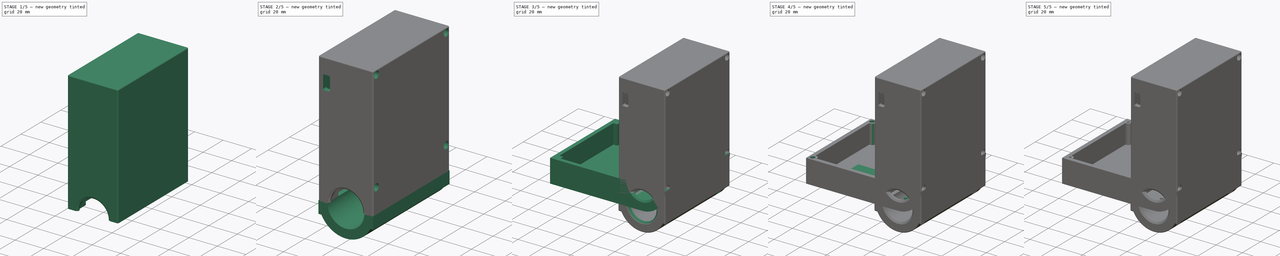
[diagram: build sequence overview — one tinted view per stage of 5, left to right]
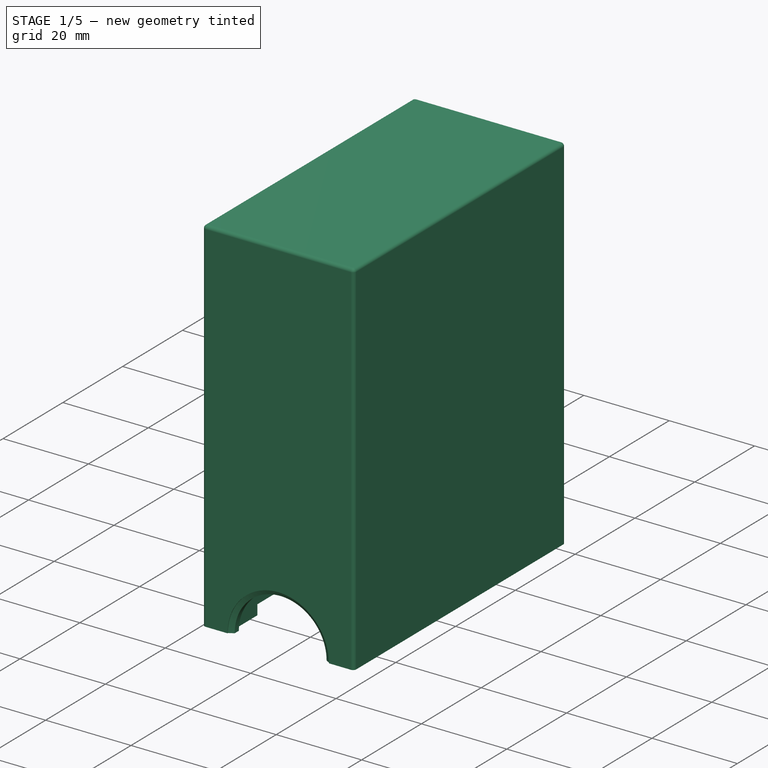
[diagram: stage 1 of 5 — iso view after this stage's code; geometry added in this stage tinted green]
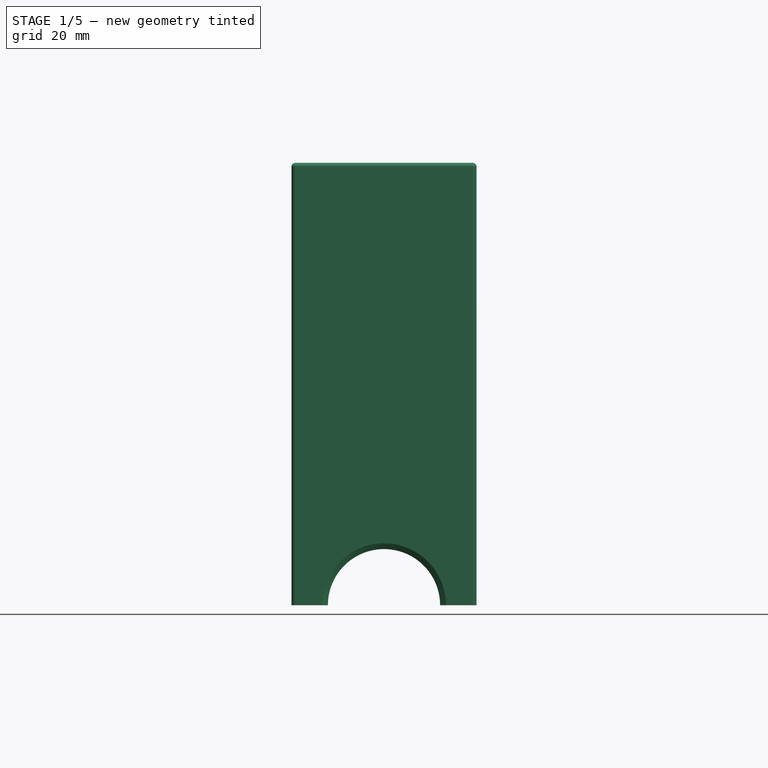
[diagram: stage 1 of 5 — front view after this stage's code; geometry added in this stage tinted green]
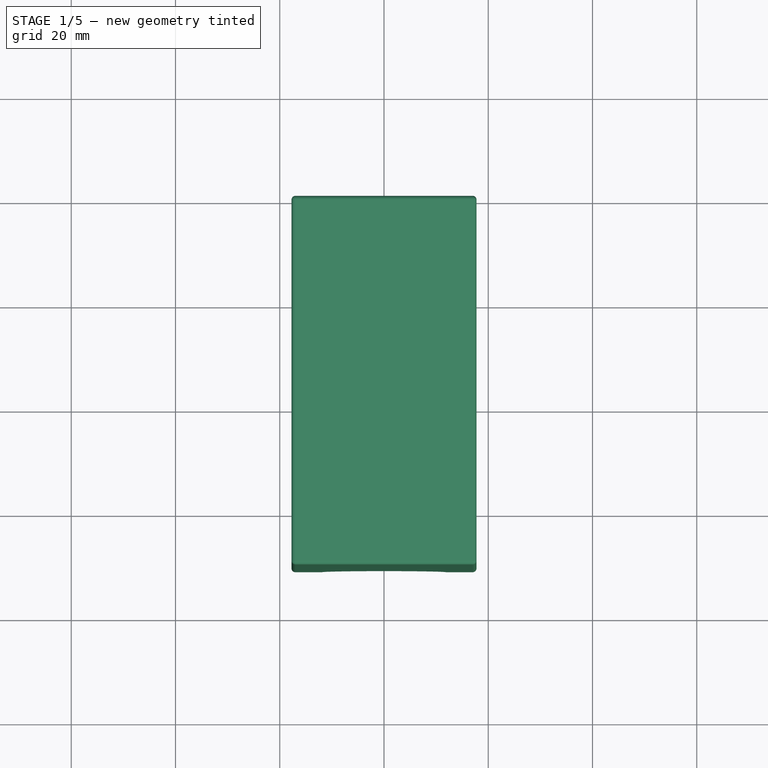
[diagram: stage 1 of 5 — top view after this stage's code; geometry added in this stage tinted green]
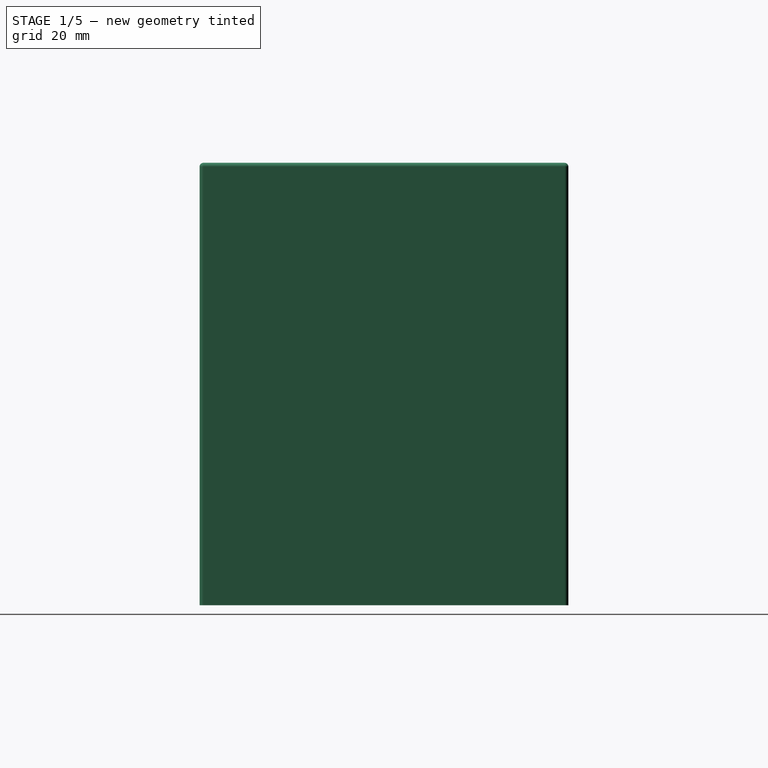
[diagram: stage 1 of 5 — right view after this stage's code; geometry added in this stage tinted green]
FCSTD DOCUMENT  (FreeCAD 1.0R39285 (Git))
Label: X-O2Sensor_Case
License: All rights reserved
LicenseURL: https://en.wikipedia.org/wiki/All_rights_reserved
objects: Sketcher::SketchObject×45, PartDesign::Pocket×21, PartDesign::Pad×18, PartDesign::Body×8, App::Part×6, PartDesign::Revolution×4, PartDesign::Fillet×3, Part::FeaturePython×3, PartDesign::FeatureBase×2, Spreadsheet::Sheet×1, PartDesign::Chamfer×1, Part::Extrusion×1, App::DocumentObjectGroup×1
note: 247 computed .brp shape members not serialized (recipe doc carries the construction recipe); baked Part::Feature solids carry a one-line shape summary decoded from their .brp

FEATURE [PartDesign::Body] Body004  label="X-O2Sensor_Case_Base_New_Body"
  AllowCompound = false
  Group = -> [Sketch025,Sketch026,Pad015,Revolution002,Sketch027,Pocket008,Sketch028,Pocket009,Fillet001]
  Origin = -> Origin009
  Tip = -> Fillet001
FEATURE [App::Part] Part004  label="X-O2Sensor_Case_Base_New"
  Group = -> [Body004]
  Origin = -> Origin008
FEATURE [Sketcher::SketchObject] Sketch029
  ArcFitTolerance = 1e-06
  AttachmentSupport = -> [XY_Plane011]
  FullyConstrained = true
  MakeInternals = false
  MapMode = 5
  expr: Constraints[10] = (<<S>>.sensor_diameter + <<S>>.dimension_wall_thickness * 2) / 2
  expr: Constraints[11] = <<S>>.dimension_case_width
  expr: Constraints[9] = <<S>>.sensor_diameter + <<S>>.dimension_wall_thickness * 2
  sketch-geometry (4):
    g0: LineSegment StartX=-17.75 StartY=0 StartZ=0 EndX=-17.75 EndY=-70.75 EndZ=0
    g1: LineSegment StartX=-17.75 StartY=-70.75 StartZ=0 EndX=17.75 EndY=-70.75 EndZ=0
    g2: LineSegment StartX=17.75 StartY=-70.75 StartZ=0 EndX=17.75 EndY=0 EndZ=0
    g3: LineSegment StartX=17.75 StartY=0 StartZ=0 EndX=-17.75 EndY=0 EndZ=0
  constraints (12):
    c: Coincident(g0,g1)
    c: Coincident(g1,g2)
    c: Coincident(g2,g3)
    c: Coincident(g3,g0)
    c: Vertical(g0)
    c: Vertical(g2)
    c: Horizontal(g1)
    c: Horizontal(g3)
    c: PointOnObject(g0,g-1)
    c: DistanceX(g3,g3) = 35.5
    c: DistanceX(g-1,g2) = 17.75
    c: DistanceY(g2,g2) = 70.75
FEATURE [PartDesign::Pad] Pad016  label="CasePadMain001"
  Direction = (0,0,1)
  Length = 84.875
  Length2 = 10
  Profile = -> Sketch029
  ReferenceAxis = -> Sketch029 [N_Axis]
  Refine = true
  Suppressed = false
  Type = 0
  expr: Length = <<S>>.nipple_thread_diameter / 2 + <<S>>.dimension_adapter_wall_thickness + <<S>>.dimension_case_length + <<S>>.dimension_wall_thickness
FEATURE [Sketcher::SketchObject] Sketch030
  ArcFitTolerance = 1e-06
  AttachmentSupport = -> [Pad016]
  FullyConstrained = true
  MakeInternals = false
  MapMode = 5
  Placement = pos=(0,-70.75,0) rot=(1,0,0;1.5708rad)
  expr: Constraints[1] = <<S>>.nipple_thread_diameter + <<S>>.dimension_adapter_wall_thickness * 2
  sketch-geometry (1):
    g0: Circle CenterX=0 CenterY=0 CenterZ=0 NormalX=0 NormalY=0 NormalZ=1 AngleXU=0 Radius=11.875
  constraints (2):
    c: Coincident(g0,g-1)
    c: Diameter(g0) = 23.75
FEATURE [PartDesign::Pocket] Pocket010  label="InsertPocketMain"
  BaseFeature = -> Pad016
  Direction = (0,1,-2e-16)
  Length = 5
  Length2 = 5
  Profile = -> Sketch030
  ReferenceAxis = -> Sketch030 [N_Axis]
  Refine = true
  Suppressed = false
  Type = 1
FEATURE [Sketcher::SketchObject] Sketch031
  ArcFitTolerance = 1e-06
  AttachmentSupport = -> [Pocket010]
  FullyConstrained = true
  MakeInternals = false
  MapMode = 5
  Placement = pos=(0,0,0) rot=(1,0,0;3.14159rad)
  sketch-geometry (14):
    g0: LineSegment StartX=13.1874 StartY=69.95 StartZ=0 EndX=11.975 EndY=70.65 EndZ=0
    g1: LineSegment StartX=11.975 StartY=70.65 StartZ=0 EndX=10.7626 EndY=69.95 EndZ=0
    g2: LineSegment StartX=10.7626 StartY=69.95 StartZ=0 EndX=10.7626 EndY=68.55 EndZ=0
    g3: LineSegment StartX=10.7626 StartY=68.55 StartZ=0 EndX=11.975 EndY=67.85 EndZ=0
    g4: LineSegment StartX=11.975 StartY=67.85 StartZ=0 EndX=13.1874 EndY=68.55 EndZ=0
    g5: LineSegment StartX=13.1874 StartY=68.55 StartZ=0 EndX=13.1874 EndY=69.95 EndZ=0
    g6: Circle [constr] CenterX=11.975 CenterY=69.25 CenterZ=0 NormalX=0 NormalY=0 NormalZ=1 AngleXU=0 Radius=1.4
    g7: LineSegment StartX=13.1874 StartY=2.3 StartZ=0 EndX=11.975 EndY=3 EndZ=0
    g8: LineSegment StartX=11.975 StartY=3 StartZ=0 EndX=10.7626 EndY=2.3 EndZ=0
    g9: LineSegment StartX=10.7626 StartY=2.3 StartZ=0 EndX=10.7626 EndY=0.9 EndZ=0
    g10: LineSegment StartX=10.7626 StartY=0.9 StartZ=0 EndX=11.975 EndY=0.2 EndZ=0
    g11: LineSegment StartX=11.975 StartY=0.2 StartZ=0 EndX=13.1874 EndY=0.9 EndZ=0
    g12: LineSegment StartX=13.1874 StartY=0.9 StartZ=0 EndX=13.1874 EndY=2.3 EndZ=0
    g13: Circle [constr] CenterX=11.975 CenterY=1.6 CenterZ=0 NormalX=0 NormalY=0 NormalZ=1 AngleXU=0 Radius=1.4
  constraints (34):
    c: Coincident(g0,g1)
    c: Coincident(g1,g2)
    c: Coincident(g2,g3)
    c: Coincident(g3,g4)
    c: Coincident(g4,g5)
    c: Coincident(g5,g0)
    c: Equal(g0, g1-g5) x5
    c: PointOnObject(g0,g6)
    c: PointOnObject(g1,g6)
    c: PointOnObject(g2,g6)
    c: PointOnObject(g3,g6)
    c: PointOnObject(g4,g6)
    c: PointOnObject(g5,g6)
    c: Radius(g6) = 1.4
    c: DistanceY(g2,g4) = 0
    c: Coincident(g7,g8)
    c: Coincident(g8,g9)
    c: Coincident(g9,g10)
    c: Coincident(g10,g11)
    c: Coincident(g11,g12)
    c: Coincident(g12,g7)
    c: Equal(g7, g8-g12) x5
    c: PointOnObject(g7,g13)
    c: PointOnObject(g8,g13)
    c: PointOnObject(g9,g13)
    c: PointOnObject(g10,g13)
    c: PointOnObject(g11,g13)
    c: PointOnObject(g12,g13)
    c: Radius(g13) = 1.4
    c: DistanceY(g9,g11) = 0
    c: DistanceX(g3,g7) = 0
    c: DistanceY(g-1,g10) = 0.2
    c: DistanceX(g-1,g10) = 11.975
    c: DistanceY(g-1,g0) = 70.65
FEATURE [PartDesign::Revolution] Revolution003  label="InsertRevolutionHolder001"
  Angle = 180
  Angle2 = 60
  Axis = (0,-1,0)
  Base = (0,0,0)
  BaseFeature = -> Pocket010
  Profile = -> Sketch031
  ReferenceAxis = -> Sketch031 [V_Axis]
  Refine = true
  Suppressed = false
  Type = 0
FEATURE [Sketcher::SketchObject] Sketch032
  ArcFitTolerance = 1e-06
  AttachmentSupport = -> [Revolution003]
  FullyConstrained = true
  MakeInternals = false
  MapMode = 5
  Placement = pos=(0,0,-1.84e-14) rot=(1,0,0;3.14159rad)
  sketch-geometry (4):
    g0: Circle CenterX=-14.915 CenterY=63.75 CenterZ=0 NormalX=0 NormalY=0 NormalZ=1 AngleXU=0 Radius=1.65
    g1: Circle CenterX=14.915 CenterY=63.75 CenterZ=0 NormalX=0 NormalY=0 NormalZ=1 AngleXU=0 Radius=1.65
    g2: Circle CenterX=14.915 CenterY=7 CenterZ=0 NormalX=0 NormalY=0 NormalZ=1 AngleXU=0 Radius=1.65
    g3: Circle CenterX=-14.915 CenterY=7 CenterZ=0 NormalX=0 NormalY=0 NormalZ=1 AngleXU=0 Radius=1.65
  constraints (12):
    c: Diameter(g0) = 3.3
    c: Diameter(g1) = 3.3
    c: Diameter(g2) = 3.3
    c: Diameter(g3) = 3.3
    c: DistanceY(g1,g0) = 0
    c: DistanceY(g3,g2) = 0
    c: DistanceX(g0,g3) = 0
    c: DistanceX(g1,g2) = 0
    c: DistanceY(g-1,g2) = 7
    c: DistanceY(g-1,g1) = 63.75
    c: DistanceX(g-1,g2) = 14.915
    c: DistanceX(g3,g-1) = 14.915
FEATURE [PartDesign::Pocket] Pocket011  label="InsertPockets001"
  BaseFeature = -> Revolution003
  Direction = (1e-15,0,1)
  Length = 5
  Length2 = 5
  Profile = -> Sketch032
  ReferenceAxis = -> Sketch032 [N_Axis]
  Refine = true
  Suppressed = false
  Type = 0
FEATURE [Sketcher::SketchObject] Sketch033
  ArcFitTolerance = 1e-06
  AttachmentSupport = -> [Pocket011]
  FullyConstrained = true
  MakeInternals = false
  MapMode = 5
  Placement = pos=(0,0,-1.84e-14) rot=(1,0,0;3.14159rad)
  expr: Constraints[11] = <<S>>.dimension_case_width - 10
  expr: Constraints[24] = <<S>>.nipple_thread_diameter + <<S>>.dimension_adapter_wall_thickness * 2
  expr: Constraints[25] = <<S>>.nipple_thread_diameter + <<S>>.dimension_adapter_wall_thickness * 2
  expr: Constraints[26] = (<<S>>.nipple_thread_diameter + <<S>>.dimension_adapter_wall_thickness * 2) / 2
  expr: Constraints[27] = (<<S>>.nipple_thread_diameter + <<S>>.dimension_adapter_wall_thickness * 2) / 2
  expr: Constraints[28] = <<S>>.dimension_wall_thickness
  expr: Constraints[29] = <<S>>.dimension_case_width - <<S>>.dimension_wall_thickness
  expr: Constraints[8] = <<S>>.sensor_diameter
  expr: Constraints[9] = <<S>>.sensor_diameter / 2
  sketch-geometry (12):
    g0: LineSegment StartX=-14.75 StartY=60.75 StartZ=0 EndX=-14.75 EndY=10 EndZ=0
    g1: LineSegment StartX=-14.75 StartY=10 StartZ=0 EndX=-11.875 EndY=10 EndZ=0
    g2: LineSegment StartX=14.75 StartY=10 StartZ=0 EndX=14.75 EndY=60.75 EndZ=0
    g3: LineSegment StartX=14.75 StartY=60.75 StartZ=0 EndX=11.875 EndY=60.75 EndZ=0
    g4: LineSegment StartX=-11.875 StartY=60.75 StartZ=0 EndX=-11.875 EndY=67.75 EndZ=0
    g5: LineSegment StartX=-11.875 StartY=67.75 StartZ=0 EndX=11.875 EndY=67.75 EndZ=0
    g6: LineSegment StartX=11.875 StartY=67.75 StartZ=0 EndX=11.875 EndY=60.75 EndZ=0
    g7: LineSegment StartX=-11.875 StartY=10 StartZ=0 EndX=-11.875 EndY=3 EndZ=0
    g8: LineSegment StartX=-11.875 StartY=3 StartZ=0 EndX=11.875 EndY=3 EndZ=0
    g9: LineSegment StartX=11.875 StartY=3 StartZ=0 EndX=11.875 EndY=10 EndZ=0
    g10: LineSegment StartX=-11.875 StartY=60.75 StartZ=0 EndX=-14.75 EndY=60.75 EndZ=0
    g11: LineSegment StartX=11.875 StartY=10 StartZ=0 EndX=14.75 EndY=10 EndZ=0
  constraints (38):
    c: Coincident(g0,g1)
    c: Coincident(g11,g2)
    c: Coincident(g2,g3)
    c: Coincident(g10,g0)
    c: Vertical(g0)
    c: Vertical(g2)
    c: Horizontal(g1)
    c: Horizontal(g3)
    c: DistanceX(g10,g3) = 29.5
    c: DistanceX(g-1,g2) = 14.75
    c: DistanceY(g-1,g11) = 10
    c: DistanceY(g-1,g2) = 60.75
    c: PointOnObject(g4,g10)
    c: Vertical(g4)
    c: Coincident(g4,g5)
    c: Horizontal(g5)
    c: Coincident(g5,g6)
    c: Vertical(g6)
    c: Vertical(g7)
    c: Coincident(g7,g8)
    c: Horizontal(g8)
    c: Coincident(g8,g9)
    c: PointOnObject(g9,g11)
    c: Vertical(g9)
    c: DistanceX(g8,g8) = 23.75
    c: DistanceX(g5,g5) = 23.75
    c: DistanceX(g4,g-1) = 11.875
    c: DistanceX(g7,g-1) = 11.875
    c: DistanceY(g-1,g7) = 3
    c: DistanceY(g-1,g4) = 67.75
    c: Coincident(g3,g6)
    c: PointOnObject(g10,g4)
    c: Coincident(g1,g7)
    c: PointOnObject(g11,g9)
    c: DistanceY(g4,g0) = 0
    c: DistanceY(g9,g2) = 0
    c: DistanceY(g0,g3) = 0
    c: DistanceY(g1,g9) = 0
FEATURE [PartDesign::Pocket] Pocket012  label="InsertCutoutPocket1"
  BaseFeature = -> Pocket011
  Direction = (1e-15,0,1)
  Length = 5
  Length2 = 5
  Profile = -> Sketch033
  ReferenceAxis = -> Sketch033 [N_Axis]
  Refine = true
  Suppressed = false
  Type = 0
FEATURE [Sketcher::SketchObject] Sketch034
  ArcFitTolerance = 1e-06
  AttachmentSupport = -> [Pocket012]
  FullyConstrained = true
  MakeInternals = false
  MapMode = 5
  Placement = pos=(5.1e-15,0,5) rot=(1,0,0;3.14159rad)
  expr: Constraints[10] = <<S>>.dimension_wall_thickness
  expr: Constraints[11] = <<S>>.dimension_case_width - <<S>>.dimension_wall_thickness
  expr: Constraints[8] = <<S>>.sensor_diameter
  expr: Constraints[9] = <<S>>.sensor_diameter / 2
  sketch-geometry (4):
    g0: LineSegment StartX=-14.75 StartY=67.75 StartZ=0 EndX=-14.75 EndY=3 EndZ=0
    g1: LineSegment StartX=-14.75 StartY=3 StartZ=0 EndX=14.75 EndY=3 EndZ=0
    g2: LineSegment StartX=14.75 StartY=3 StartZ=0 EndX=14.75 EndY=67.75 EndZ=0
    g3: LineSegment StartX=14.75 StartY=67.75 StartZ=0 EndX=-14.75 EndY=67.75 EndZ=0
  constraints (12):
    c: Coincident(g0,g1)
    c: Coincident(g1,g2)
    c: Coincident(g2,g3)
    c: Coincident(g3,g0)
    c: Vertical(g0)
    c: Vertical(g2)
    c: Horizontal(g1)
    c: Horizontal(g3)
    c: DistanceX(g3,g3) = 29.5
    c: DistanceX(g-1,g2) = 14.75
    c: DistanceY(g-1,g1) = 3
    c: DistanceY(g-1,g0) = 67.75
FEATURE [PartDesign::Pocket] Pocket013  label="InsertCutoutPocket2"
  BaseFeature = -> Pocket012
  Direction = (1e-15,0,1)
  Length = 6.875
  Length2 = 5
  Profile = -> Sketch034
  ReferenceAxis = -> Sketch034 [N_Axis]
  Refine = true
  Suppressed = false
  Type = 0
  expr: Length = <<S>>.nipple_thread_diameter / 2 + <<S>>.dimension_adapter_wall_thickness - 5
FEATURE [Sketcher::SketchObject] Sketch035
  ArcFitTolerance = 1e-06
  AttachmentSupport = -> [Pocket011]
  FullyConstrained = true
  MakeInternals = false
  MapMode = 5
  Placement = pos=(0,0,-1.84e-14) rot=(1,0,0;3.14159rad)
  sketch-geometry (4):
    g0: Circle CenterX=-14.915 CenterY=63.75 CenterZ=0 NormalX=0 NormalY=0 NormalZ=1 AngleXU=0 Radius=1.375
    g1: Circle CenterX=14.915 CenterY=63.75 CenterZ=0 NormalX=0 NormalY=0 NormalZ=1 AngleXU=0 Radius=1.375
    g2: Circle CenterX=14.915 CenterY=7 CenterZ=0 NormalX=0 NormalY=0 NormalZ=1 AngleXU=0 Radius=1.375
    g3: Circle CenterX=-14.915 CenterY=7 CenterZ=0 NormalX=0 NormalY=0 NormalZ=1 AngleXU=0 Radius=1.375
  constraints (12):
    c: Diameter(g0) = 2.75
    c: Diameter(g1) = 2.75
    c: Diameter(g2) = 2.75
    c: Diameter(g3) = 2.75
    c: DistanceY(g1,g0) = 0
    c: DistanceY(g3,g2) = 0
    c: DistanceX(g0,g3) = 0
    c: DistanceX(g1,g2) = 0
    c: DistanceY(g-1,g2) = 7
    c: DistanceY(g-1,g1) = 63.75
    c: DistanceX(g-1,g2) = 14.915
    c: DistanceX(g3,g-1) = 14.915
FEATURE [PartDesign::Pocket] Pocket014  label="InsertScrewPockets"
  BaseFeature = -> Pocket013
  Direction = (1e-15,0,1)
  Length = 10
  Length2 = 5
  Profile = -> Sketch035
  ReferenceAxis = -> Sketch035 [N_Axis]
  Refine = true
  Suppressed = false
  Type = 0
FEATURE [Sketcher::SketchObject] Sketch036
  ArcFitTolerance = 1e-06
  AttachmentSupport = -> [Pocket014]
  FullyConstrained = true
  MakeInternals = false
  MapMode = 5
  Placement = pos=(1.29e-14,0,11.875) rot=(1,0,0;3.14159rad)
  expr: Constraints[10] = <<S>>.dimension_wall_thickness
  expr: Constraints[11] = <<S>>.sensor_diameter / 2
  expr: Constraints[8] = <<S>>.sensor_diameter
  expr: Constraints[9] = <<S>>.dimension_case_width - <<S>>.dimension_wall_thickness * 2
  sketch-geometry (4):
    g0: LineSegment StartX=-14.75 StartY=67.75 StartZ=0 EndX=-14.75 EndY=3 EndZ=0
    g1: LineSegment StartX=-14.75 StartY=3 StartZ=0 EndX=14.75 EndY=3 EndZ=0
    g2: LineSegment StartX=14.75 StartY=3 StartZ=0 EndX=14.75 EndY=67.75 EndZ=0
    g3: LineSegment StartX=14.75 StartY=67.75 StartZ=0 EndX=-14.75 EndY=67.75 EndZ=0
  constraints (12):
    c: Coincident(g0,g1)
    c: Coincident(g1,g2)
    c: Coincident(g2,g3)
    c: Coincident(g3,g0)
    c: Vertical(g0)
    c: Vertical(g2)
    c: Horizontal(g1)
    c: Horizontal(g3)
    c: DistanceX(g1,g1) = 29.5
    c: DistanceY(g0,g0) = 64.75
    c: DistanceY(g-1,g0) = 3
    c: DistanceX(g-1,g1) = 14.75
FEATURE [PartDesign::Pocket] Pocket015  label="InsideMainPocket"
  BaseFeature = -> Pocket014
  Direction = (1.1e-15,0,1)
  Length = 70
  Length2 = 5
  Profile = -> Sketch036
  ReferenceAxis = -> Sketch036 [N_Axis]
  Refine = true
  Suppressed = false
  Type = 0
  expr: Length = <<S>>.dimension_case_length
FEATURE [PartDesign::Fillet] Fillet003  label="SoftenEdgesFillet001"
  Base = -> Pocket015 [Edge51,Edge52,Edge48,Edge84,Edge29,Edge28,Edge27,Edge49]
  BaseFeature = -> Pocket015
  Radius = 0.75
  Refine = true
  SupportTransform = false
  Suppressed = false
  UseAllEdges = false
FEATURE [Sketcher::SketchObject] Sketch037
  ArcFitTolerance = 1e-06
  AttachmentSupport = -> [Fillet003]
  FullyConstrained = true
  MakeInternals = false
  MapMode = 5
  Placement = pos=(-14.75,0,1.63e-14) rot=(0.57735,0.57735,0.57735;2.0944rad)
  expr: Constraints[44] = <<S>>.dimension_wall_thickness
  expr: Constraints[45] = <<S>>.dimension_case_width - <<S>>.dimension_wall_thickness
  expr: Constraints[46] = <<S>>.nipple_thread_diameter / 2 + <<S>>.dimension_adapter_wall_thickness + <<S>>.dimension_case_length
  expr: Constraints[47] = <<S>>.nipple_thread_diameter / 2 + <<S>>.dimension_adapter_wall_thickness + 1
  sketch-geometry (16):
    g0: LineSegment StartX=-67.75 StartY=81.875 StartZ=0 EndX=-67.75 EndY=78.875 EndZ=0
    g1: LineSegment StartX=-67.75 StartY=78.875 StartZ=0 EndX=-64.75 EndY=78.875 EndZ=0
    g2: LineSegment StartX=-64.75 StartY=78.875 StartZ=0 EndX=-64.75 EndY=81.875 EndZ=0
    g3: LineSegment StartX=-64.75 StartY=81.875 StartZ=0 EndX=-67.75 EndY=81.875 EndZ=0
    g4: LineSegment StartX=-3 StartY=81.875 StartZ=0 EndX=-6 EndY=81.875 EndZ=0
    g5: LineSegment StartX=-6 StartY=81.875 StartZ=0 EndX=-6 EndY=78.875 EndZ=0
    g6: LineSegment StartX=-6 StartY=78.875 StartZ=0 EndX=-3 EndY=78.875 EndZ=0
    g7: LineSegment StartX=-3 StartY=78.875 StartZ=0 EndX=-3 EndY=81.875 EndZ=0
    g8: LineSegment StartX=-67.75 StartY=18.875 StartZ=0 EndX=-67.75 EndY=12.875 EndZ=0
    g9: LineSegment StartX=-67.75 StartY=12.875 StartZ=0 EndX=-64.75 EndY=12.875 EndZ=0
    g10: LineSegment StartX=-64.75 StartY=12.875 StartZ=0 EndX=-64.75 EndY=18.875 EndZ=0
    g11: LineSegment StartX=-64.75 StartY=18.875 StartZ=0 EndX=-67.75 EndY=18.875 EndZ=0
    g12: LineSegment StartX=-3 StartY=18.875 StartZ=0 EndX=-6 EndY=18.875 EndZ=0
    g13: LineSegment StartX=-6 StartY=18.875 StartZ=0 EndX=-6 EndY=12.875 EndZ=0
    g14: LineSegment StartX=-6 StartY=12.875 StartZ=0 EndX=-3 EndY=12.875 EndZ=0
    g15: LineSegment StartX=-3 StartY=12.875 StartZ=0 EndX=-3 EndY=18.875 EndZ=0
  constraints (48):
    c: Coincident(g0,g1)
    c: Coincident(g1,g2)
    c: Coincident(g2,g3)
    c: Coincident(g3,g0)
    c: Vertical(g0)
    c: Vertical(g2)
    c: Horizontal(g1)
    c: Horizontal(g3)
    c: Distance(g0,g2) = 3
    c: Distance(g1,g3) = 3
    c: Coincident(g4,g5)
    c: Coincident(g5,g6)
    c: Coincident(g6,g7)
    c: Coincident(g7,g4)
    c: Horizontal(g4)
    c: Horizontal(g6)
    c: Vertical(g5)
    c: Vertical(g7)
    c: Distance(g5,g7) = 3
    c: Distance(g4,g6) = 3
    c: Coincident(g8,g9)
    c: Coincident(g9,g10)
    c: Coincident(g10,g11)
    c: Coincident(g11,g8)
    c: Vertical(g8)
    c: Vertical(g10)
    c: Horizontal(g9)
    c: Horizontal(g11)
    c: Distance(g8,g10) = 3
    c: Distance(g9,g11) = 6
    c: Coincident(g12,g13)
    c: Coincident(g13,g14)
    c: Coincident(g14,g15)
    c: Coincident(g15,g12)
    c: Horizontal(g12)
    c: Horizontal(g14)
    c: Vertical(g13)
    c: Vertical(g15)
    c: Distance(g13,g15) = 3
    c: Distance(g12,g14) = 6
    c: DistanceY(g2,g4) = 0
    c: DistanceY(g12,g10) = 0
    c: DistanceX(g8,g0) = 0
    c: DistanceX(g12,g6) = 0
    c: DistanceX(g14,g-1) = 3
    c: DistanceX(g8,g-1) = 67.75
    c: DistanceY(g-1,g4) = 81.875
    c: DistanceY(g-1,g14) = 12.875
FEATURE [PartDesign::Pad] Pad017  label="InsideScrewPad"
  BaseFeature = -> Fillet003
  Direction = (1,1e-16,-1e-15)
  Length = 29.5
  Length2 = 10
  Profile = -> Sketch037
  ReferenceAxis = -> Sketch037 [N_Axis]
  Refine = true
  Suppressed = false
  Type = 0
  expr: Length = <<S>>.sensor_diameter
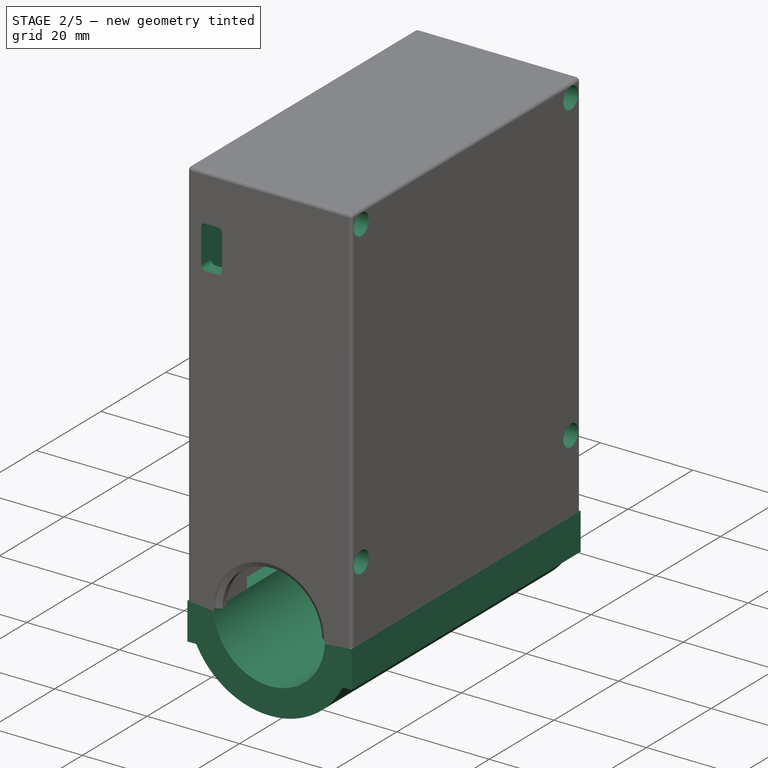
[diagram: stage 2 of 5 — iso view after this stage's code; geometry added in this stage tinted green]
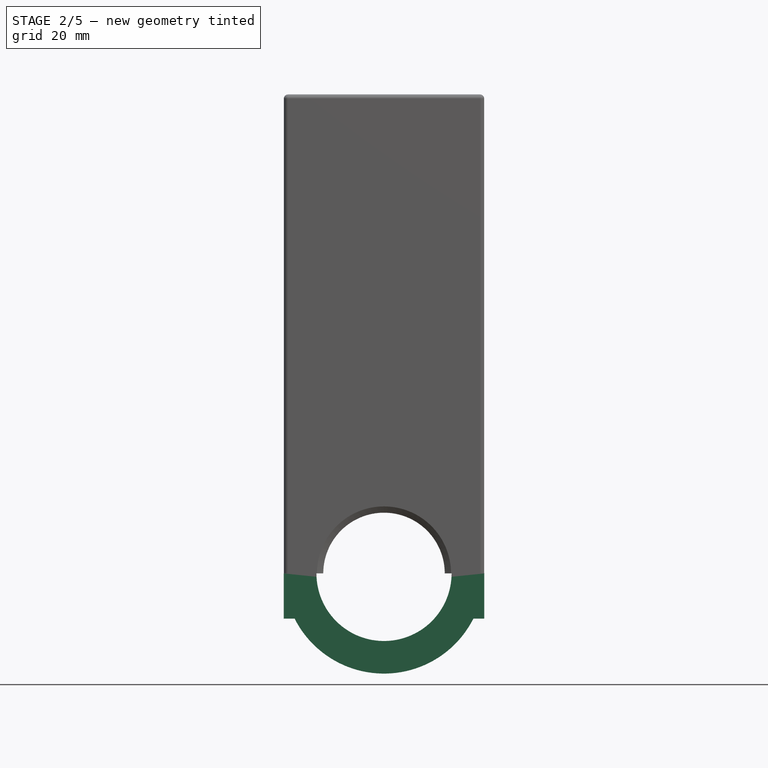
[diagram: stage 2 of 5 — front view after this stage's code; geometry added in this stage tinted green]
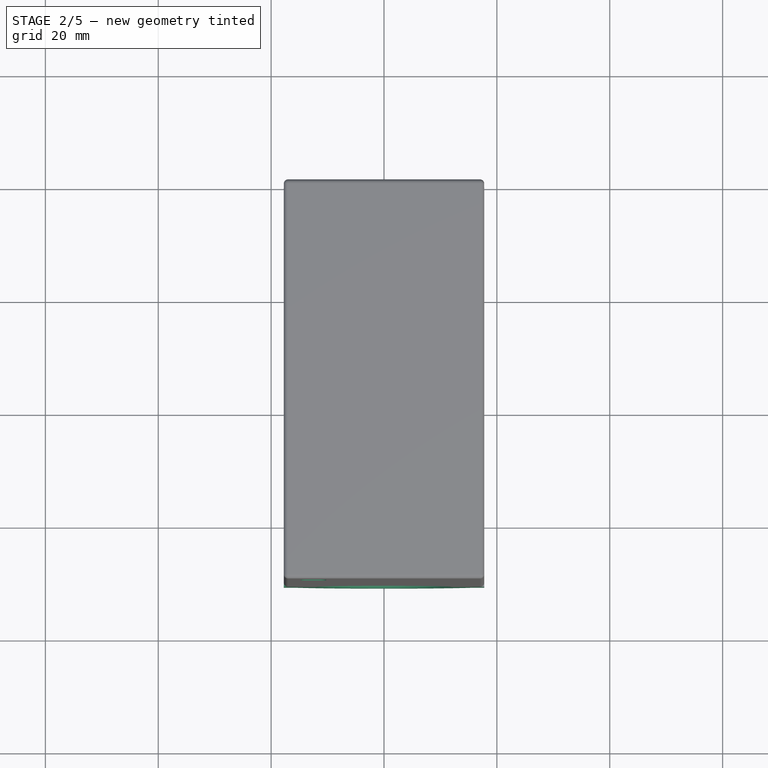
[diagram: stage 2 of 5 — top view after this stage's code; geometry added in this stage tinted green]
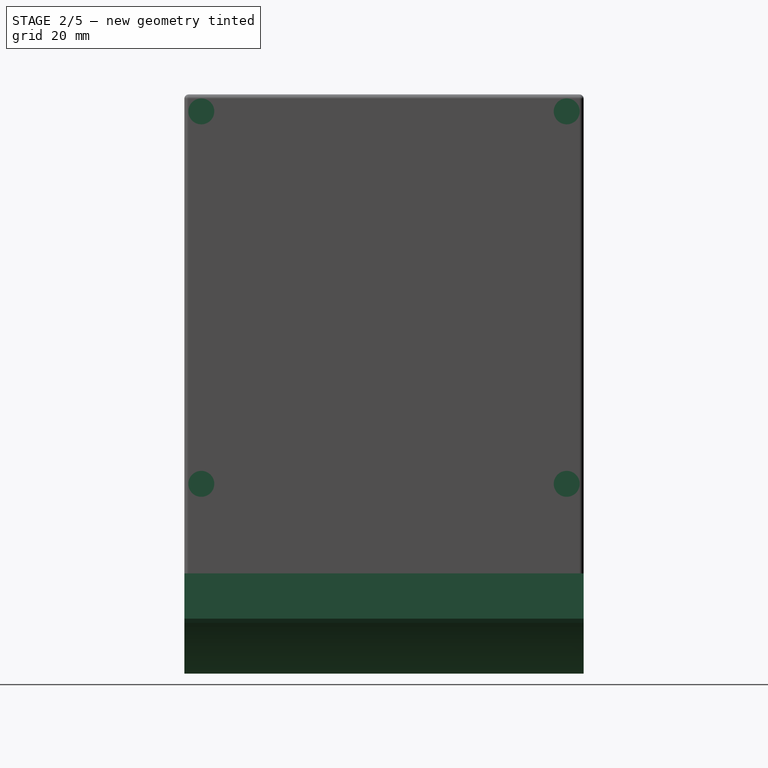
[diagram: stage 2 of 5 — right view after this stage's code; geometry added in this stage tinted green]
FEATURE [PartDesign::Body] Body  label="X-O2Sensor_Case_Body"
  AllowCompound = false
  Group = -> [Sketch,Pad,Sketch001,Pad001,Sketch002,Pad002,Sketch003,Pad003,Sketch004,Pocket,Sketch005,Revolution,Sketch006,Pad004,Sketch014,Pocket002,Sketch015,Pocket003,Sketch018,Pocket004,Chamfer,Sketch019,Pad012,Sketch020,Pocket005,Fillet,Sketch021,Pocket006,Sketch022,Pocket007]
  Origin = -> Origin001
  Tip = -> Pocket007
FEATURE [App::Part] Part  label="X-O2Sensor_Case_Part_Face"
  Group = -> [Body]
  Origin = -> Origin
FEATURE [Sketcher::SketchObject] Sketch025
  ArcFitTolerance = 1e-06
  AttachmentSupport = -> [XZ_Plane009]
  FullyConstrained = true
  MakeInternals = false
  MapMode = 5
  Placement = pos=(0,0,0) rot=(1,0,0;1.5708rad)
  expr: Constraints[0] = <<S>>.sensor_diameter + <<S>>.dimension_wall_thickness * 2
  expr: Constraints[10] = <<S>>.sensor_diameter / 2 - <<S>>.sensor_diameter / 2
  expr: Constraints[1] = <<S>>.nipple_thread_diameter + <<S>>.dimension_adapter_wall_thickness * 2 + 0.2
  expr: Constraints[3] = <<S>>.sensor_diameter / 2 - <<S>>.sensor_diameter / 2
  sketch-geometry (8):
    g0: ArcOfCircle CenterX=0 CenterY=0 CenterZ=0 NormalX=0 NormalY=0 NormalZ=1 AngleXU=0 Radius=11.975 StartAngle=3.14159 EndAngle=6.28319
    g1: ArcOfCircle CenterX=0 CenterY=0 CenterZ=0 NormalX=0 NormalY=0 NormalZ=1 AngleXU=0 Radius=17.75 StartAngle=3.60915 EndAngle=5.81563
    g2: LineSegment StartX=-17.755 StartY=1.5e-15 StartZ=0 EndX=-11.975 EndY=1.5e-15 EndZ=0
    g3: LineSegment StartX=11.975 StartY=0 StartZ=0 EndX=17.755 EndY=0 EndZ=0
    g4: LineSegment StartX=-15.845 StartY=-8 StartZ=0 EndX=-17.755 EndY=-8 EndZ=0
    g5: LineSegment StartX=-17.755 StartY=-8 StartZ=0 EndX=-17.755 EndY=9e-16 EndZ=0
    g6: LineSegment StartX=15.845 StartY=-8 StartZ=0 EndX=17.755 EndY=-8 EndZ=0
    g7: LineSegment StartX=17.755 StartY=-8 StartZ=0 EndX=17.755 EndY=0 EndZ=0
  constraints (26):
    c: Diameter(g1) = 35.5
    c: Diameter(g0) = 23.95
    c: DistanceX(g-1,g1) = 0
    c: DistanceY(g-1,g1) = 0
    c: Coincident(g0,g1)
    c: Horizontal(g2)
    c: PointOnObject(g0,g2)
    c: PointOnObject(g0,g3)
    c: Coincident(g2,g0)
    c: PointOnObject(g3,g0)
    c: DistanceY(g-1,g0) = 0
    c: DistanceY(g0,g3) = 0
    c: Horizontal(g4)
    c: Coincident(g4,g5)
    c: Coincident(g5,g2)
    c: Vertical(g5)
    c: Horizontal(g6)
    c: Coincident(g6,g7)
    c: Coincident(g7,g3)
    c: Vertical(g7)
    c: DistanceY(g7,g7) = 8
    c: DistanceY(g5,g5) = 8
    c: Coincident(g1,g4)
    c: Coincident(g1,g6)
    c: DistanceX(g6,g6) = 1.91
    c: DistanceX(g4,g4) = 1.91
FEATURE [PartDesign::Pad] Pad015  label="CasePadMain"
  Direction = (0,-1,2e-16)
  Length = 70.75
  Length2 = 10
  Placement = pos=(0,0,0) rot=(1,0,0;1.5708rad)
  Profile = -> Sketch025
  ReferenceAxis = -> Sketch025 [N_Axis]
  Refine = true
  Suppressed = false
  Type = 0
  expr: Length = <<S>>.dimension_case_width
FEATURE [Sketcher::SketchObject] Sketch038
  ArcFitTolerance = 1e-06
  FullyConstrained = true
  MakeInternals = false
  MapMode = 5
  Placement = pos=(17.75,0,0) rot=(0.57735,0.57735,0.57735;2.0944rad)
  expr: Constraints[10] = <<S>>.dimension_case_width - 3
  expr: Constraints[11] = 3
  expr: Constraints[8] = <<S>>.nipple_thread_diameter / 2 + <<S>>.dimension_adapter_wall_thickness + 1 + 3
  expr: Constraints[9] = <<S>>.nipple_thread_diameter / 2 + <<S>>.dimension_adapter_wall_thickness + <<S>>.dimension_case_length
  sketch-geometry (4):
    g0: Circle CenterX=-67.75 CenterY=81.875 CenterZ=0 NormalX=0 NormalY=0 NormalZ=1 AngleXU=0 Radius=1.375
    g1: Circle CenterX=-3 CenterY=81.875 CenterZ=0 NormalX=0 NormalY=0 NormalZ=1 AngleXU=0 Radius=1.375
    g2: Circle CenterX=-3 CenterY=15.875 CenterZ=0 NormalX=0 NormalY=0 NormalZ=1 AngleXU=0 Radius=1.375
    g3: Circle CenterX=-67.75 CenterY=15.875 CenterZ=0 NormalX=0 NormalY=0 NormalZ=1 AngleXU=0 Radius=1.375
  constraints (12):
    c: Diameter(g0) = 2.75
    c: Diameter(g1) = 2.75
    c: Diameter(g2) = 2.75
    c: Diameter(g3) = 2.75
    c: DistanceY(g0,g1) = 0
    c: DistanceY(g3,g2) = 0
    c: DistanceX(g2,g1) = 0
    c: DistanceX(g0,g3) = 0
    c: DistanceY(g-1,g2) = 15.875
    c: DistanceY(g-1,g1) = 81.875
    c: DistanceX(g3,g-1) = 67.75
    c: DistanceX(g2,g-1) = 3
FEATURE [PartDesign::Pocket] Pocket016  label="ScrewPocket"
  BaseFeature = -> Pad017
  Direction = (-1,0,0)
  Length = 32.5
  Length2 = 5
  Profile = -> Sketch038
  ReferenceAxis = -> Sketch038 [N_Axis]
  Refine = true
  Suppressed = false
  Type = 0
  expr: Length = <<S>>.sensor_diameter + <<S>>.dimension_wall_thickness
FEATURE [Sketcher::SketchObject] Sketch039
  ArcFitTolerance = 1e-06
  AttachmentSupport = -> [Pocket016]
  FullyConstrained = true
  MakeInternals = false
  MapMode = 5
  Placement = pos=(17.75,0,0) rot=(0.57735,0.57735,0.57735;2.0944rad)
  sketch-geometry (4):
    g0: Circle CenterX=-67.75 CenterY=81.875 CenterZ=0 NormalX=0 NormalY=0 NormalZ=1 AngleXU=0 Radius=2.3
    g1: Circle CenterX=-3 CenterY=81.875 CenterZ=0 NormalX=0 NormalY=0 NormalZ=1 AngleXU=0 Radius=2.3
    g2: Circle CenterX=-3 CenterY=15.875 CenterZ=0 NormalX=0 NormalY=0 NormalZ=1 AngleXU=0 Radius=2.3
    g3: Circle CenterX=-67.75 CenterY=15.875 CenterZ=0 NormalX=0 NormalY=0 NormalZ=1 AngleXU=0 Radius=2.3
  constraints (12):
    c: Diameter(g0) = 4.6
    c: Diameter(g1) = 4.6
    c: Diameter(g2) = 4.6
    c: Diameter(g3) = 4.6
    c: DistanceY(g0,g1) = 0
    c: DistanceY(g3,g2) = 0
    c: DistanceX(g2,g1) = 0
    c: DistanceX(g0,g3) = 0
    c: DistanceY(g-1,g2) = 15.875
    c: DistanceY(g-1,g1) = 81.875
    c: DistanceX(g3,g-1) = 67.75
    c: DistanceX(g2,g-1) = 3
FEATURE [PartDesign::Pocket] Pocket017  label="ScrewHeadPocket"
  BaseFeature = -> Pocket016
  Direction = (-1,0,0)
  Length = 5
  Length2 = 5
  Profile = -> Sketch039
  ReferenceAxis = -> Sketch039 [N_Axis]
  Refine = true
  Suppressed = false
  Type = 0
FEATURE [PartDesign::Body] Body005  label="X-O2Sensor_Case_Main_New_Body"
  AllowCompound = false
  Group = -> [Sketch029,Pad016,Sketch030,Pocket010,Sketch031,Revolution003,Sketch032,Pocket011,Sketch033,Pocket012,Sketch034,Pocket013,Sketch035,Pocket014,Sketch036,Pocket015,Fillet003,Sketch037,Pad017,Sketch038,Pocket016,Sketch039,Pocket017]
  Origin = -> Origin011
  Tip = -> Pocket017
FEATURE [Sketcher::SketchObject] Sketch040
  ArcFitTolerance = 1e-06
  AttachmentSupport = -> [Pocket017]
  FullyConstrained = true
  MakeInternals = false
  MapMode = 5
  Placement = pos=(0,-70.75,0) rot=(1,0,0;1.5708rad)
  expr: Constraints[2] = <<S>>.nipple_thread_diameter / 2 + <<S>>.dimension_adapter_wall_thickness + <<S>>.dimension_case_length + <<S>>.dimension_wall_thickness
  sketch-geometry (1):
    g0: LineSegment StartX=0 StartY=84.875 StartZ=0 EndX=0 EndY=0 EndZ=0
  constraints (3):
    c: PointOnObject(g0,g-2)
    c: Coincident(g0,g-1)
    c: DistanceY(g0,g0) = 84.875
FEATURE [Part::Extrusion] Extrude
  Base = -> Sketch040
  Dir = (0,-1,2e-16)
  DirMode = 2
  FaceMakerClass = Part::FaceMakerBullseye
  FaceMakerMode = 3
  LengthFwd = 100
  LengthRev = 0
  Reversed = true
  Solid = false
  Symmetric = false
FEATURE [Part::FeaturePython] Slice  # WARN: FeaturePython — macro-defined, semantics opaque (R4)
  Base = -> Body005
  Mode = 1
  Tolerance = 0
  Tools = -> [Extrude]
FEATURE [Part::FeaturePython] Slice_child0  label="Slice.0"  # WARN: FeaturePython — macro-defined, semantics opaque (R4)
  Base = -> Slice
  FilterType = 1
  Invert = false
  OverrideMaxVal = 0
  WindowFrom = 80
  WindowTo = 100
  items = 0
FEATURE [Part::FeaturePython] Slice_child1  label="Slice.1"  # WARN: FeaturePython — macro-defined, semantics opaque (R4)
  Base = -> Slice
  FilterType = 1
  Invert = false
  OverrideMaxVal = 0
  WindowFrom = 80
  WindowTo = 100
  items = 1
FEATURE [App::DocumentObjectGroup] GrExplode_Slice  label="Exploded Slice"
  Group = -> [Slice_child0,Slice_child1]
FEATURE [PartDesign::FeatureBase] BaseFeature
  BaseFeature = -> Slice_child1
  Suppressed = false
FEATURE [PartDesign::Body] Body006  label="BodyCaseBack"
  AllowCompound = false
  BaseFeature = -> Slice_child1
  Group = -> [BaseFeature]
  Origin = -> Origin012
  Tip = -> BaseFeature
FEATURE [PartDesign::FeatureBase] BaseFeature001
  BaseFeature = -> Slice_child0
  Suppressed = false
FEATURE [Sketcher::SketchObject] Sketch041
  ArcFitTolerance = 1e-06
  AttachmentSupport = -> [BaseFeature001]
  FullyConstrained = true
  MakeInternals = false
  MapMode = 5
  Placement = pos=(0,0,0) rot=(0.57735,0.57735,0.57735;2.0944rad)
  sketch-geometry (4):
    g0: Circle CenterX=-67.75 CenterY=81.875 CenterZ=0 NormalX=0 NormalY=0 NormalZ=1 AngleXU=0 Radius=1.65
    g1: Circle CenterX=-3 CenterY=81.875 CenterZ=0 NormalX=0 NormalY=0 NormalZ=1 AngleXU=0 Radius=1.65
    g2: Circle CenterX=-3 CenterY=15.875 CenterZ=0 NormalX=0 NormalY=0 NormalZ=1 AngleXU=0 Radius=1.65
    g3: Circle CenterX=-67.75 CenterY=15.875 CenterZ=0 NormalX=0 NormalY=0 NormalZ=1 AngleXU=0 Radius=1.65
  constraints (12):
    c: Diameter(g0) = 3.3
    c: Diameter(g1) = 3.3
    c: Diameter(g2) = 3.3
    c: Diameter(g3) = 3.3
    c: DistanceY(g0,g1) = 0
    c: DistanceY(g3,g2) = 0
    c: DistanceX(g2,g1) = 0
    c: DistanceX(g0,g3) = 0
    c: DistanceY(g-1,g2) = 15.875
    c: DistanceY(g-1,g1) = 81.875
    c: DistanceX(g3,g-1) = 67.75
    c: DistanceX(g2,g-1) = 3
FEATURE [PartDesign::Pocket] Pocket018  label="InsertPocket"
  BaseFeature = -> BaseFeature001
  Direction = (-1,0,0)
  Length = 5
  Length2 = 5
  Profile = -> Sketch041
  ReferenceAxis = -> Sketch041 [N_Axis]
  Refine = true
  Suppressed = false
  Type = 0
FEATURE [Sketcher::SketchObject] Sketch042
  ArcFitTolerance = 1e-06
  AttachmentSupport = -> [Pocket018]
  FullyConstrained = true
  MakeInternals = false
  MapMode = 5
  Placement = pos=(-14.75,0,1.63e-14) rot=(0.57735,0.57735,0.57735;2.0944rad)
  expr: Constraints[10] = <<S>>.battery_length
  expr: Constraints[11] = <<S>>.nipple_thread_diameter / 2 + <<S>>.dimension_adapter_wall_thickness + <<S>>.dimension_case_length - 3
  expr: Constraints[21] = <<S>>.charger_width
  expr: Constraints[22] = <<S>>.charger_length
  expr: Constraints[23] = <<S>>.dimension_case_width - 1.5
  expr: Constraints[32] = <<S>>.vr_length
  expr: Constraints[33] = <<S>>.vr_width
  expr: Constraints[34] = <<S>>.dimension_case_width - <<S>>.dimension_wall_thickness - 1
  expr: Constraints[56] = <<S>>.zero_length
  expr: Constraints[57] = <<S>>.zero_width
  expr: Constraints[68] = <<S>>.ads1115_length
  expr: Constraints[69] = <<S>>.ads1115_width
  expr: Constraints[8] = <<S>>.dimension_wall_thickness
  expr: Constraints[9] = <<S>>.battery_width
  sketch-geometry (24):
    g0: LineSegment StartX=-3 StartY=78.875 StartZ=0 EndX=-33 EndY=78.875 EndZ=0
    g1: LineSegment StartX=-33 StartY=78.875 StartZ=0 EndX=-33 EndY=36.875 EndZ=0
    g2: LineSegment StartX=-33 StartY=36.875 StartZ=0 EndX=-3 EndY=36.875 EndZ=0
    g3: LineSegment StartX=-3 StartY=36.875 StartZ=0 EndX=-3 EndY=78.875 EndZ=0
    g4: LineSegment StartX=-69.25 StartY=78.875 StartZ=0 EndX=-69.25 EndY=61.575 EndZ=0
    g5: LineSegment StartX=-69.25 StartY=61.575 StartZ=0 EndX=-41.25 EndY=61.575 EndZ=0
    g6: LineSegment StartX=-41.25 StartY=61.575 StartZ=0 EndX=-41.25 EndY=78.875 EndZ=0
    g7: LineSegment StartX=-41.25 StartY=78.875 StartZ=0 EndX=-69.25 EndY=78.875 EndZ=0
    g8: LineSegment StartX=-66.75 StartY=60.75 StartZ=0 EndX=-66.75 EndY=50.5 EndZ=0
    g9: LineSegment StartX=-66.75 StartY=50.5 StartZ=0 EndX=-51.25 EndY=50.5 EndZ=0
    g10: LineSegment StartX=-51.25 StartY=50.5 StartZ=0 EndX=-51.25 EndY=60.75 EndZ=0
    g11: LineSegment StartX=-51.25 StartY=60.75 StartZ=0 EndX=-66.75 EndY=60.75 EndZ=0
    g12: LineSegment StartX=-39.54 StartY=78.875 StartZ=0 EndX=-39.54 EndY=73.675 EndZ=0
    g13: LineSegment StartX=-39.54 StartY=73.675 StartZ=0 EndX=-34.69 EndY=73.675 EndZ=0
    g14: LineSegment StartX=-34.69 StartY=73.675 StartZ=0 EndX=-34.69 EndY=78.875 EndZ=0
    g15: LineSegment StartX=-34.69 StartY=78.875 StartZ=0 EndX=-39.54 EndY=78.875 EndZ=0
    g16: LineSegment StartX=-33 StartY=35.875 StartZ=0 EndX=-33 EndY=17.875 EndZ=0
    g17: LineSegment StartX=-33 StartY=17.875 StartZ=0 EndX=-9.5 EndY=17.875 EndZ=0
    g18: LineSegment StartX=-9.5 StartY=17.875 StartZ=0 EndX=-9.5 EndY=35.875 EndZ=0
    g19: LineSegment StartX=-9.5 StartY=35.875 StartZ=0 EndX=-33 EndY=35.875 EndZ=0
    g20: LineSegment StartX=-50.76 StartY=60.75 StartZ=0 EndX=-50.76 EndY=32.75 EndZ=0
    g21: LineSegment StartX=-50.76 StartY=32.75 StartZ=0 EndX=-33.56 EndY=32.75 EndZ=0
    g22: LineSegment StartX=-33.56 StartY=32.75 StartZ=0 EndX=-33.56 EndY=60.75 EndZ=0
    g23: LineSegment StartX=-33.56 StartY=60.75 StartZ=0 EndX=-50.76 EndY=60.75 EndZ=0
  constraints (72):
    c: Coincident(g0,g1)
    c: Coincident(g1,g2)
    c: Coincident(g2,g3)
    c: Coincident(g3,g0)
    c: Horizontal(g0)
    c: Horizontal(g2)
    c: Vertical(g1)
    c: Vertical(g3)
    c: DistanceX(g2,g-1) = 3
    c: DistanceX(g0,g0) = 30
    c: DistanceY(g3,g3) = 42
    c: DistanceY(g-1,g0) = 78.875
    c: Coincident(g4,g5)
    c: Coincident(g5,g6)
    c: Coincident(g6,g7)
    c: Coincident(g7,g4)
    c: Vertical(g4)
    c: Vertical(g6)
    c: Horizontal(g5)
    c: Horizontal(g7)
    c: DistanceY(g6,g0) = 0
    c: DistanceY(g6,g6) = 17.3
    c: DistanceX(g7,g7) = 28
    c: DistanceX(g4,g-1) = 69.25
    c: Coincident(g8,g9)
    c: Coincident(g9,g10)
    c: Coincident(g10,g11)
    c: Coincident(g11,g8)
    c: Vertical(g8)
    c: Vertical(g10)
    c: Horizontal(g9)
    c: Horizontal(g11)
    c: DistanceX(g11,g11) = 15.5
    c: DistanceY(g10,g10) = 10.25
    c: DistanceX(g8,g-1) = 66.75
    c: DistanceY(g-1,g10) = 60.75
    c: Coincident(g12,g13)
    c: Coincident(g13,g14)
    c: Coincident(g14,g15)
    c: Coincident(g15,g12)
    c: Vertical(g12)
    c: Vertical(g14)
    c: Horizontal(g13)
    c: Horizontal(g15)
    c: Distance(g12,g14) = 4.85
    c: Distance(g13,g15) = 5.2
    c: DistanceY(g14,g0) = 0
    c: DistanceX(g14,g0) = 1.69
    c: Coincident(g16,g17)
    c: Coincident(g17,g18)
    c: Coincident(g18,g19)
    c: Coincident(g19,g16)
    c: Vertical(g16)
    c: Vertical(g18)
    c: Horizontal(g17)
    c: Horizontal(g19)
    c: DistanceX(g19,g19) = 23.5
    c: DistanceY(g18,g18) = 18
    c: DistanceX(g1,g16) = 0
    c: DistanceY(g16,g1) = 1
    c: Coincident(g20,g21)
    c: Coincident(g21,g22)
    c: Coincident(g22,g23)
    c: Coincident(g23,g20)
    c: Vertical(g20)
    c: Vertical(g22)
    c: Horizontal(g21)
    c: Horizontal(g23)
    c: DistanceX(g23,g23) = 17.2
    c: DistanceY(g22,g22) = 28
    c: DistanceY(g20,g10) = 0
    c: DistanceX(g21,g-1) = 33.56
FEATURE [PartDesign::Pocket] Pocket019  label="BatteryChargerPocket"
  BaseFeature = -> Pocket018
  Direction = (-1,-1e-16,1e-15)
  Length = 1.6
  Length2 = 5
  Profile = -> Sketch042
  ReferenceAxis = -> Sketch042 [N_Axis]
  Refine = true
  Suppressed = false
  Type = 0
  expr: Length = <<S>>.charger_pcb_thickness
FEATURE [Sketcher::SketchObject] Sketch043
  ArcFitTolerance = 1e-06
  AttachmentSupport = -> [Pocket019]
  FullyConstrained = true
  MakeInternals = false
  MapMode = 5
  Placement = pos=(0,-67.75,0) rot=(0,0.707107,0.707107;3.14159rad)
  expr: Constraints[4] = <<S>>.charger_usb_width + 0.3
  expr: Constraints[5] = <<S>>.charger_usb_height + 0.3
  expr: Constraints[6] = <<S>>.nipple_thread_diameter / 2 + <<S>>.dimension_adapter_wall_thickness + <<S>>.dimension_case_length - 3 - <<S>>.charger_width / 2 + <<S>>.charger_usb_width / 2
  expr: Constraints[7] = <<S>>.sensor_diameter / 2
  sketch-geometry (12):
    g0: LineSegment StartX=13.75 StartY=74.725 StartZ=0 EndX=11.25 EndY=74.725 EndZ=0
    g1: LineSegment StartX=10.25 StartY=73.725 StartZ=0 EndX=10.25 EndY=66.425 EndZ=0
    g2: LineSegment StartX=11.25 StartY=65.425 StartZ=0 EndX=13.75 EndY=65.425 EndZ=0
    g3: LineSegment StartX=14.75 StartY=66.425 StartZ=0 EndX=14.75 EndY=73.725 EndZ=0
    g4: ArcOfCircle CenterX=11.25 CenterY=73.725 CenterZ=0 NormalX=0 NormalY=0 NormalZ=1 AngleXU=0 Radius=1 StartAngle=1.5708 EndAngle=3.14159
    g5: GeomPoint [constr] X=10.25 Y=74.725 Z=0
    g6: ArcOfCircle CenterX=13.75 CenterY=73.725 CenterZ=0 NormalX=0 NormalY=0 NormalZ=1 AngleXU=0 Radius=1 StartAngle=-7.84581e-11 EndAngle=1.5708
    g7: GeomPoint [constr] X=14.75 Y=74.725 Z=0
    g8: ArcOfCircle CenterX=13.75 CenterY=66.425 CenterZ=0 NormalX=0 NormalY=0 NormalZ=1 AngleXU=0 Radius=1 StartAngle=4.71239 EndAngle=6.28319
    g9: GeomPoint [constr] X=14.75 Y=65.425 Z=0
    g10: ArcOfCircle CenterX=11.25 CenterY=66.425 CenterZ=0 NormalX=0 NormalY=0 NormalZ=1 AngleXU=0 Radius=1 StartAngle=3.14159 EndAngle=4.71239
    g11: GeomPoint [constr] X=10.25 Y=65.425 Z=0
  constraints (28):
    c: Horizontal(g0)
    c: Horizontal(g2)
    c: Vertical(g1)
    c: Vertical(g3)
    c: DistanceY(g9,g7) = 9.3
    c: DistanceX(g5,g7) = 4.5
    c: DistanceY(g-1,g5) = 74.725
    c: DistanceX(g-1,g7) = 14.75
    c: PointOnObject(g5,g1)
    c: PointOnObject(g5,g0)
    c: Tangent(g1,g4) = -1.5708
    c: Tangent(g0,g4) = -1.5708
    c: PointOnObject(g7,g0)
    c: PointOnObject(g7,g3)
    c: Tangent(g0,g6) = -1.5708
    c: Tangent(g3,g6) = -1.5708
    c: PointOnObject(g9,g3)
    c: PointOnObject(g9,g2)
    c: Tangent(g3,g8) = -1.5708
    c: Tangent(g2,g8) = -1.5708
    c: PointOnObject(g11,g2)
    c: PointOnObject(g11,g1)
    c: Tangent(g2,g10) = -1.5708
    c: Tangent(g1,g10) = -1.5708
    c: Equal(g4,g10)
    c: Equal(g4,g8)
    c: Equal(g4,g6)
    c: Diameter(g4) = 2
FEATURE [PartDesign::Pocket] Pocket020  label="USBChargerPocket"
  BaseFeature = -> Pocket019
  Direction = (0,-1,2e-16)
  Length = 5
  Length2 = 5
  Profile = -> Sketch043
  ReferenceAxis = -> Sketch043 [N_Axis]
  Refine = true
  Suppressed = false
  Type = 1
FEATURE [Sketcher::SketchObject] Sketch044
  ArcFitTolerance = 1e-06
  AttachmentSupport = -> [Pocket020]
  FullyConstrained = true
  MakeInternals = false
  MapMode = 5
  Placement = pos=(-14.75,0,1.63e-14) rot=(0.57735,0.57735,0.57735;2.0944rad)
FEATURE [PartDesign::Body] Body007  label="BodyCaseFront"
  AllowCompound = false
  BaseFeature = -> Slice_child0
  Group = -> [BaseFeature001,Sketch041,Pocket018,Sketch042,Pocket019,Sketch043,Pocket020,Sketch044]
  Origin = -> Origin013
  Tip = -> Pocket020
FEATURE [App::Part] Part005  label="X-O2Sensor_Case_Main_New"
  Group = -> [Body006,Slice_child0,Slice_child1,Sketch040,Extrude,Slice,Body005,Body007]
  Origin = -> Origin010
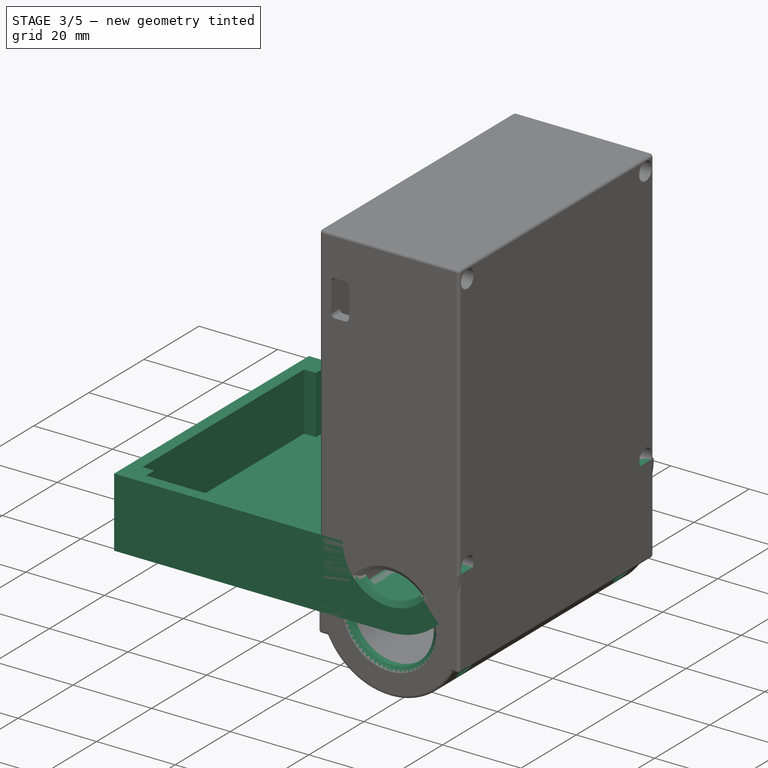
[diagram: stage 3 of 5 — iso view after this stage's code; geometry added in this stage tinted green]
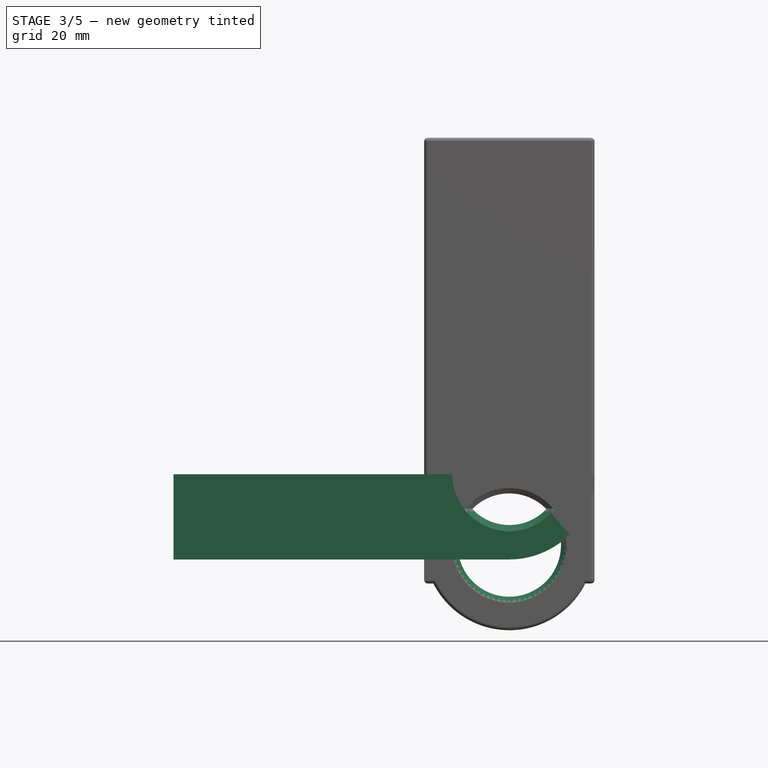
[diagram: stage 3 of 5 — front view after this stage's code; geometry added in this stage tinted green]
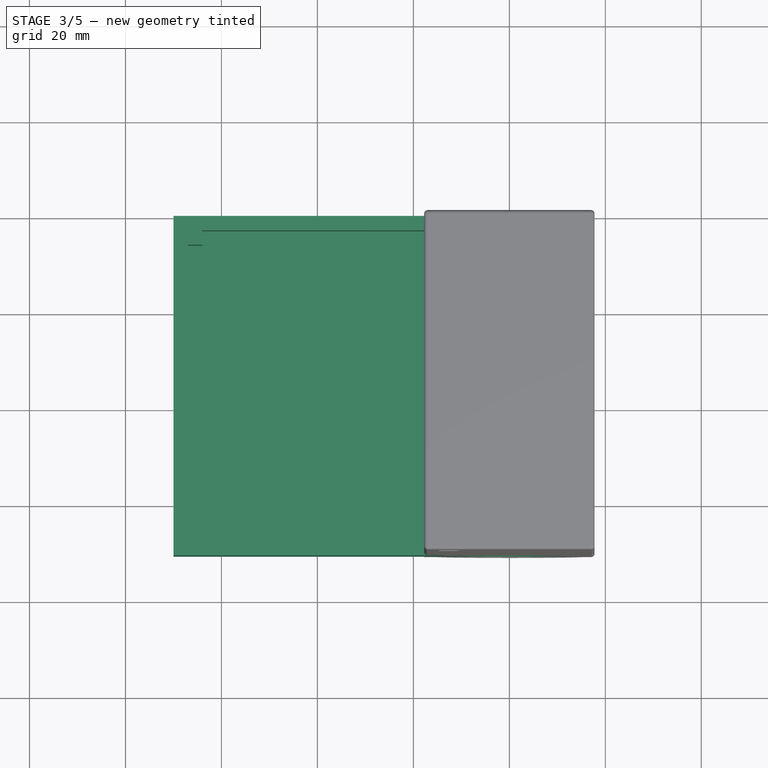
[diagram: stage 3 of 5 — top view after this stage's code; geometry added in this stage tinted green]
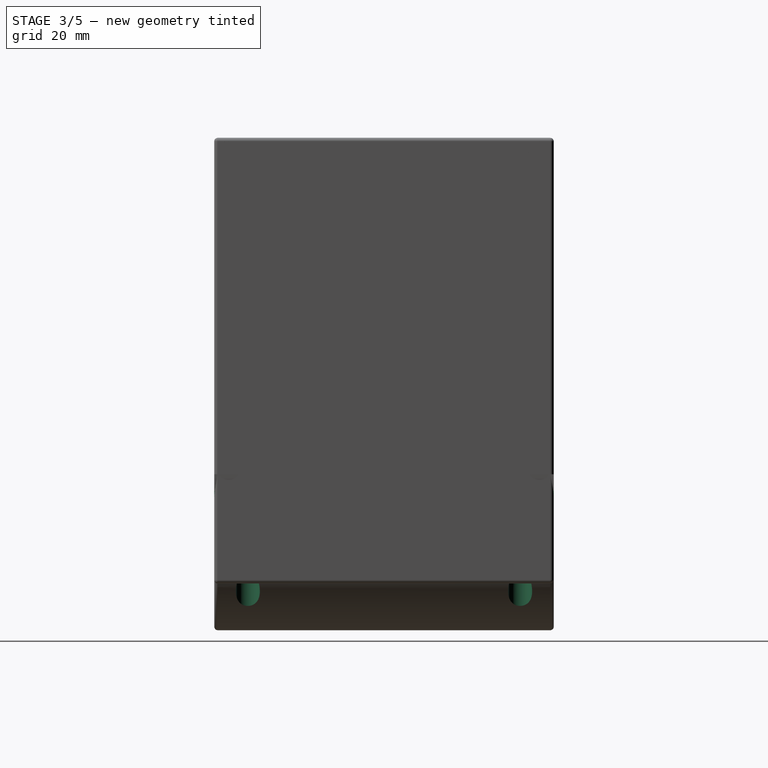
[diagram: stage 3 of 5 — right view after this stage's code; geometry added in this stage tinted green]
FEATURE [Spreadsheet::Sheet] Spreadsheet  label="S"
  cells = A2='zero_width; B2(zero_width)=18; A3='zero_length; B3(zero_length)=23.5; A4='zero_usb_width; B4(zero_usb_width)=9; A5='zero_usb_nib; B5(zero_usb_nib)=1; A6='zero_pcb_thickness; B6(zero_pcb_thickness)=1.15; A7='zero_usb_thickness; B7(zero_usb_thickness)=3.25; C7='This is also the thickest top part; A8='zero_bottom_height; B8(zero_bottom_height)=1.25; A9='zero_bottom_chip_width; B9(zero_bottom_chip_width)=7; A10='zero_pad_width; B10(zero_pad_width)=2.5; A16='ads1115_width; B16(ads1115_width)=28; A17='ads1115_length; B17(ads1115_length)=17.2; A18='ads115_pcb_thickness; B18(ads115_pcb_thickness)=1.5; A19='ads115_holes; B19(ads115_holes)=2.4; A22='charger_width; B22(charger_width)=17.3; A23='charger_length; B23(charger_length)=28; A24='charger_usb_width; B24(charger_usb_width)=9; A25='charger_holes; B25(charger_holes)=1.5; A26='charger_pcb_thickness; B26(charger_pcb_thickness)=1.6; A27='charger_usb_height; B27(charger_usb_height)=4.2; A31='oled_width; B31(oled_width)=28.15; C31='https://thepihut.com/products/blue-0-96-oled-display-module-128x94?srsltid=AfmBOoqjCmrL4VVzqR_EE5hcJSdx-CRojF6zMIyrO1bcx0NnoYyN6zFz; A32='oled_length; B32(oled_length)=28.25; A33='oled_holes; B33(oled_holes)=1.95; A34='oled_pcb_thickness; B34(oled_pcb_thickness)=1.25; A35='oled_screen_height; B35(oled_screen_height)=1.75; A36='oled_screen_width; B36(oled_screen_width)=25.35; A37='oled_screen_length; B37(oled_screen_length)=16.85; A38='oled_hole_top_edge; B38(oled_hole_top_edge)=1.25; A39='oled_hole_side_edge; B39(oled_hole_side_edge)=1.25; A40='oled_hole_bottom_edge; B40(oled_hole_bottom_edge)=1.25; A41='oled_screen_bottom; B41(oled_screen_bottom)=3; A43='battery_width; B43(battery_width)=30; A44='battery_length; B44(battery_length)=42; A45='batter_depth; B45(batter_depth)=8.2; A49='switch_width; B49(switch_width)=12.3; A50='switch_length; B50(switch_length)=19.2; A51='switch_depth; B51(switch_depth)=11.1; A52='swith_length; B52(swith_length)=6; A53='switch_button_diameter; B53(switch_button_diameter)=3.5; A54='switch_button_height; B54(switch_button_height)=1.75; A55='switch_top_thingies; B55(switch_top_thingies)=0.6; A59='vr_length; B59(vr_length)=15.5; A60='vr_width; B60(vr_width)=10.25; A61='vr_back_depth; B61(vr_back_depth)=1.3; A62='vr_hole; B62(vr_hole)=3.7; A63='vr_hole_top_edge; B63(vr_hole_top_edge)=1; A66='sensor_diameter; B66(sensor_diameter)=29.5; A67='sensor_length; B67(sensor_length)=41.5; A68='sensor_thread_diameter; B68(sensor_thread_diameter)=16; A69='sensor_thread_pitch; B69(sensor_thread_pitch)=1; A70='sensor_thread_per_inch; B70(sensor_thread_per_inch)=25.4; A71='sensor_thread_length; B71(sensor_thread_length)=7.5; A72='sensor_smaller_body_diameter; B72(sensor_smaller_body_diameter)=26.3; A74='nipple_minor_diameter; B74(nipple_minor_diameter)=12.12; A75='nipple_pitch; B75(nipple_pitch)=1.41; A76='nipple_thread_diameter; B76(nipple_thread_diameter)=13.75; A77='nipple_thread_per_inch; B77(nipple_thread_per_inch)=18; A78='nipple_thread_length; B78(nipple_thread_length)=12.6; A80='dimension_base_height; B80(dimension_base_height)=12; A81='dimension_extender_height; B81(dimension_extender_height)=42; A83='insert_diameter; B83(insert_diameter)=5.3; A85='dimension_wall_thickness; B85(dimension_wall_thickness)=3; A86='dimension_case_width; B86(dimension_case_width)=70.75; A87='dimension_case_length; B87(dimension_case_length)=70; A88='dimension_adapter_wall_thickness; B88(dimension_adapter_wall_thickness)=5; A92='button_diameter; B92(button_diameter)=12.25; A93='dimension_oled_edge; B93(dimension_oled_edge)=33
FEATURE [Sketcher::SketchObject] Sketch
  ArcFitTolerance = 1e-06
  AttachmentSupport = -> [XZ_Plane001]
  FullyConstrained = true
  MakeInternals = false
  MapMode = 5
  Placement = pos=(0,0,0) rot=(1,0,0;1.5708rad)
  expr: Constraints[13] = <<S>>.dimension_wall_thickness
  expr: Constraints[17] = <<S>>.dimension_case_length
  expr: Constraints[1] = <<S>>.sensor_diameter
  expr: Constraints[8] = <<S>>.sensor_diameter + <<S>>.dimension_wall_thickness * 2
  sketch-geometry (6):
    g0: ArcOfCircle CenterX=0 CenterY=14.75 CenterZ=0 NormalX=0 NormalY=0 NormalZ=1 AngleXU=0 Radius=14.75 StartAngle=4.71239 EndAngle=6.28319
    g1: LineSegment StartX=-2.7e-15 StartY=0 StartZ=0 EndX=-70 EndY=0 EndZ=0
    g2: LineSegment StartX=-70 StartY=0 StartZ=0 EndX=-70 EndY=-3 EndZ=0
    g3: LineSegment StartX=-70 StartY=-3 StartZ=0 EndX=4.27648e-05 EndY=-3 EndZ=0
    g4: ArcOfCircle CenterX=0 CenterY=14.75 CenterZ=0 NormalX=0 NormalY=0 NormalZ=1 AngleXU=0 Radius=17.75 StartAngle=4.71239 EndAngle=6.28319
    g5: LineSegment StartX=14.75 StartY=14.75 StartZ=0 EndX=17.75 EndY=14.75 EndZ=0
  constraints (18):
    c: PointOnObject(g0,g-2)
    c: Diameter(g0) = 29.5
    c: Coincident(g1,g2)
    c: Coincident(g2,g3)
    c: Horizontal(g1)
    c: Horizontal(g3)
    c: Vertical(g2)
    c: Coincident(g4,g0)
    c: Diameter(g4) = 35.5
    c: Horizontal(g5)
    c: PointOnObject(g0,g5)
    c: Coincident(g4,g5)
    c: Coincident(g5,g0)
    c: DistanceY(g3,g0) = 3
    c: Coincident(g3,g4)
    c: Coincident(g1,g-1)
    c: Coincident(g0,g1)
    c: DistanceX(g2,g3) = 70
FEATURE [PartDesign::Pad] Pad  label="CaseFacePad"
  Direction = (0,-1,2e-16)
  Length = 70.75
  Length2 = 10
  Placement = pos=(0,0,0) rot=(1,0,0;1.5708rad)
  Profile = -> Sketch
  ReferenceAxis = -> Sketch [N_Axis]
  Refine = true
  Suppressed = false
  Type = 0
  expr: Length = <<S>>.dimension_case_width
FEATURE [Sketcher::SketchObject] Sketch001
  ArcFitTolerance = 1e-06
  AttachmentSupport = -> [Pad]
  FullyConstrained = true
  MakeInternals = false
  MapMode = 5
  Placement = pos=(0,0,0) rot=(0,0,1;3.14159rad)
  expr: Constraints[18] = <<S>>.dimension_wall_thickness
  expr: Constraints[19] = <<S>>.dimension_wall_thickness
  expr: Constraints[22] = <<S>>.dimension_wall_thickness
  expr: Constraints[23] = <<S>>.dimension_wall_thickness
  expr: Constraints[24] = <<S>>.dimension_case_length
  expr: Constraints[34] = <<S>>.dimension_wall_thickness
  expr: Constraints[35] = <<S>>.dimension_wall_thickness
  expr: Constraints[3] = <<S>>.dimension_case_width
  expr: Constraints[45] = <<S>>.dimension_wall_thickness
  expr: Constraints[46] = <<S>>.dimension_wall_thickness
  expr: Constraints[4] = <<S>>.dimension_case_length
  sketch-geometry (16):
    g0: LineSegment StartX=70 StartY=0 StartZ=0 EndX=70 EndY=70.75 EndZ=0
    g1: LineSegment StartX=67 StartY=67.75 StartZ=0 EndX=67 EndY=3 EndZ=0
    g2: LineSegment StartX=70 StartY=70.75 StartZ=0 EndX=0 EndY=70.75 EndZ=0
    g3: LineSegment StartX=0 StartY=70.75 StartZ=0 EndX=0 EndY=67.75 EndZ=0
    g4: LineSegment StartX=0 StartY=67.75 StartZ=0 EndX=67 EndY=67.75 EndZ=0
    g5: LineSegment StartX=67 StartY=3 StartZ=0 EndX=0 EndY=3 EndZ=0
    g6: LineSegment StartX=0 StartY=3 StartZ=0 EndX=0 EndY=0 EndZ=0
    g7: LineSegment StartX=0 StartY=0 StartZ=0 EndX=70 EndY=0 EndZ=0
    g8: LineSegment StartX=67 StartY=3 StartZ=0 EndX=67 EndY=6 EndZ=0
    g9: LineSegment StartX=67 StartY=6 StartZ=0 EndX=64 EndY=6 EndZ=0
    g10: LineSegment StartX=64 StartY=6 StartZ=0 EndX=64 EndY=3 EndZ=0
    g11: LineSegment StartX=64 StartY=3 StartZ=0 EndX=67 EndY=3 EndZ=0
    g12: LineSegment StartX=67 StartY=67.75 StartZ=0 EndX=64 EndY=67.75 EndZ=0
    g13: LineSegment StartX=64 StartY=67.75 StartZ=0 EndX=64 EndY=64.75 EndZ=0
    g14: LineSegment StartX=64 StartY=64.75 StartZ=0 EndX=67 EndY=64.75 EndZ=0
    g15: LineSegment StartX=67 StartY=64.75 StartZ=0 EndX=67 EndY=67.75 EndZ=0
  constraints (47):
    c: Vertical(g0)
    c: Vertical(g1)
    c: PointOnObject(g0,g-1)
    c: DistanceY(g0,g0) = 70.75
    c: DistanceX(g-1,g0) = 70
    c: Coincident(g2,g3)
    c: Coincident(g3,g4)
    c: Horizontal(g2)
    c: Horizontal(g4)
    c: Vertical(g3)
    c: Coincident(g2,g0)
    c: PointOnObject(g3,g-2)
    c: Coincident(g5,g6)
    c: Coincident(g6,g7)
    c: Vertical(g6)
    c: Horizontal(g5)
    c: Horizontal(g7)
    c: PointOnObject(g5,g-2)
    c: DistanceY(g6,g5) = 3
    c: DistanceY(g3,g3) = 3
    c: Coincident(g1,g4)
    c: Coincident(g5,g1)
    c: DistanceX(g1,g0) = 3
    c: DistanceY(g0,g1) = 3
    c: DistanceX(g7,g7) = 70
    c: Coincident(g8,g9)
    c: Coincident(g9,g10)
    c: Coincident(g10,g11)
    c: Coincident(g11,g8)
    c: Vertical(g8)
    c: Vertical(g10)
    c: Horizontal(g9)
    c: Horizontal(g11)
    c: Coincident(g8,g1)
    c: DistanceX(g9,g9) = 3
    c: DistanceY(g10,g10) = 3
    c: Coincident(g12,g13)
    c: Coincident(g13,g14)
    c: Coincident(g14,g15)
    c: Coincident(g15,g12)
    c: Horizontal(g12)
    c: Horizontal(g14)
    c: Vertical(g13)
    c: Vertical(g15)
    c: Coincident(g12,g1)
    c: DistanceY(g13,g13) = 3
    c: DistanceX(g14,g14) = 3
FEATURE [PartDesign::Pad] Pad001  label="CaseSideStraightPads"
  BaseFeature = -> Pad
  Direction = (0,0,1)
  Length = 14.75
  Length2 = 10
  Placement = pos=(0,0,0) rot=(1,0,0;1.5708rad)
  Profile = -> Sketch001
  ReferenceAxis = -> Sketch001 [N_Axis]
  Refine = true
  Suppressed = false
  Type = 0
  expr: Length = <<S>>.sensor_diameter / 2
FEATURE [Sketcher::SketchObject] Sketch002
  ArcFitTolerance = 1e-06
  AttachmentSupport = -> [Pad001]
  FullyConstrained = true
  MakeInternals = false
  MapMode = 5
  Placement = pos=(0,-70.75,-1.57e-14) rot=(1,0,0;1.5708rad)
  expr: Constraints[1] = <<S>>.sensor_diameter
  sketch-geometry (3):
    g0: ArcOfCircle CenterX=0 CenterY=14.75 CenterZ=0 NormalX=0 NormalY=0 NormalZ=1 AngleXU=0 Radius=14.75 StartAngle=4.71239 EndAngle=6.28319
    g1: LineSegment StartX=-2.7e-15 StartY=0 StartZ=0 EndX=5.2e-15 EndY=14.75 EndZ=0
    g2: LineSegment StartX=5.2e-15 StartY=14.75 StartZ=0 EndX=14.75 EndY=14.75 EndZ=0
  constraints (9):
    c: PointOnObject(g0,g-2)
    c: Diameter(g0) = 29.5
    c: Coincident(g1,g-1)
    c: Coincident(g0,g1)
    c: Horizontal(g2)
    c: PointOnObject(g0,g2)
    c: Coincident(g1,g2)
    c: Coincident(g2,g0)
    c: DistanceX(g2,g2) = 14.75
FEATURE [PartDesign::Pad] Pad002  label="CaseSideCurvePad1"
  BaseFeature = -> Pad001
  Direction = (0,-1,2e-16)
  Length = 3
  Length2 = 10
  Placement = pos=(0,0,0) rot=(1,0,0;1.5708rad)
  Profile = -> Sketch002
  ReferenceAxis = -> Sketch002 [N_Axis]
  Refine = true
  Reversed = true
  Suppressed = false
  Type = 0
  expr: Length = <<S>>.dimension_wall_thickness
FEATURE [Sketcher::SketchObject] Sketch003
  ArcFitTolerance = 1e-06
  AttachmentSupport = -> [Pad002]
  FullyConstrained = true
  MakeInternals = false
  MapMode = 5
  Placement = pos=(0,-3e-16,0) rot=(-1,0,0;1.5708rad)
  expr: Constraints[1] = <<S>>.sensor_diameter
  sketch-geometry (3):
    g0: ArcOfCircle CenterX=0 CenterY=-14.75 CenterZ=0 NormalX=0 NormalY=0 NormalZ=1 AngleXU=0 Radius=14.75 StartAngle=0 EndAngle=1.5708
    g1: LineSegment StartX=0 StartY=-14.75 StartZ=0 EndX=9e-16 EndY=0 EndZ=0
    g2: LineSegment StartX=14.75 StartY=-14.75 StartZ=0 EndX=0 EndY=-14.75 EndZ=0
  constraints (9):
    c: PointOnObject(g0,g-2)
    c: Diameter(g0) = 29.5
    c: Coincident(g1,g0)
    c: Coincident(g1,g-1)
    c: Horizontal(g2)
    c: PointOnObject(g0,g2)
    c: PointOnObject(g2,g1)
    c: Coincident(g0,g1)
    c: Coincident(g2,g0)
FEATURE [PartDesign::Pad] Pad003  label="CaseSideCurvePad2"
  BaseFeature = -> Pad002
  Direction = (0,1,2e-16)
  Length = 3
  Length2 = 10
  Placement = pos=(0,0,0) rot=(1,0,0;1.5708rad)
  Profile = -> Sketch003
  ReferenceAxis = -> Sketch003 [N_Axis]
  Refine = true
  Reversed = true
  Suppressed = false
  Type = 0
  expr: Length = <<S>>.dimension_wall_thickness
FEATURE [Sketcher::SketchObject] Sketch004
  ArcFitTolerance = 1e-06
  AttachmentSupport = -> [Pad003]
  FullyConstrained = true
  MakeInternals = false
  MapMode = 5
  Placement = pos=(0,-70.75,-1.57e-14) rot=(1,0,0;1.5708rad)
  expr: Constraints[1] = <<S>>.nipple_thread_diameter + <<S>>.dimension_adapter_wall_thickness * 2
  expr: Constraints[2] = <<S>>.sensor_diameter / 2
  sketch-geometry (2):
    g0: ArcOfCircle CenterX=0 CenterY=14.75 CenterZ=0 NormalX=0 NormalY=0 NormalZ=1 AngleXU=0 Radius=11.875 StartAngle=3.14159 EndAngle=6.28319
    g1: LineSegment StartX=-11.875 StartY=14.75 StartZ=0 EndX=11.875 EndY=14.75 EndZ=0
  constraints (7):
    c: PointOnObject(g0,g-2)
    c: Diameter(g0) = 23.75
    c: DistanceY(g-1,g0) = 14.75
    c: DistanceY(g0,g0) = 0
    c: DistanceY(g0,g0) = 0
    c: Coincident(g1,g0)
    c: Coincident(g1,g0)
FEATURE [PartDesign::Pocket] Pocket  label="InsertThruPockets"
  BaseFeature = -> Pad003
  Direction = (0,1,-2e-16)
  Length = 5
  Length2 = 5
  Placement = pos=(0,0,0) rot=(1,0,0;1.5708rad)
  Profile = -> Sketch004
  ReferenceAxis = -> Sketch004 [N_Axis]
  Refine = true
  Suppressed = false
  Type = 1
FEATURE [Sketcher::SketchObject] Sketch005
  ArcFitTolerance = 1e-06
  AttachmentSupport = -> [Pocket]
  FullyConstrained = true
  MakeInternals = false
  MapMode = 5
  Placement = pos=(0,7e-16,14.75) rot=(0,0,1;3.14159rad)
  expr: Constraints[40] = <<S>>.dimension_case_width
  expr: Constraints[41] = (<<S>>.nipple_thread_diameter + <<S>>.dimension_adapter_wall_thickness * 2) / 2
  sketch-geometry (14):
    g0: LineSegment StartX=13.174 StartY=70 StartZ=0 EndX=11.875 EndY=70.75 EndZ=0
    g1: LineSegment StartX=11.875 StartY=70.75 StartZ=0 EndX=10.576 EndY=70 EndZ=0
    g2: LineSegment StartX=10.576 StartY=70 StartZ=0 EndX=10.576 EndY=68.5 EndZ=0
    g3: LineSegment StartX=10.576 StartY=68.5 StartZ=0 EndX=11.875 EndY=67.75 EndZ=0
    g4: LineSegment StartX=11.875 StartY=67.75 StartZ=0 EndX=13.174 EndY=68.5 EndZ=0
    g5: LineSegment StartX=13.174 StartY=68.5 StartZ=0 EndX=13.174 EndY=70 EndZ=0
    g6: Circle [constr] CenterX=11.875 CenterY=69.25 CenterZ=0 NormalX=0 NormalY=0 NormalZ=1 AngleXU=0 Radius=1.5
    g7: LineSegment StartX=13.174 StartY=2.25 StartZ=0 EndX=11.875 EndY=3 EndZ=0
    g8: LineSegment StartX=11.875 StartY=3 StartZ=0 EndX=10.576 EndY=2.25 EndZ=0
    g9: LineSegment StartX=10.576 StartY=2.25 StartZ=0 EndX=10.576 EndY=0.75 EndZ=0
    g10: LineSegment StartX=10.576 StartY=0.75 StartZ=0 EndX=11.875 EndY=0 EndZ=0
    g11: LineSegment StartX=11.875 StartY=0 StartZ=0 EndX=13.174 EndY=0.75 EndZ=0
    g12: LineSegment StartX=13.174 StartY=0.75 StartZ=0 EndX=13.174 EndY=2.25 EndZ=0
    g13: Circle [constr] CenterX=11.875 CenterY=1.5 CenterZ=0 NormalX=0 NormalY=0 NormalZ=1 AngleXU=0 Radius=1.5
  constraints (34):
    c: Coincident(g0,g1)
    c: Coincident(g1,g2)
    c: Coincident(g2,g3)
    c: Coincident(g3,g4)
    c: Coincident(g4,g5)
    c: Coincident(g5,g0)
    c: Equal(g0, g1-g5) x5
    c: PointOnObject(g0,g6)
    c: PointOnObject(g1,g6)
    c: PointOnObject(g2,g6)
    c: PointOnObject(g3,g6)
    c: PointOnObject(g4,g6)
    c: PointOnObject(g5,g6)
    c: Radius(g6) = 1.5
    c: DistanceY(g2,g4) = 0
    c: Coincident(g7,g8)
    c: Coincident(g8,g9)
    c: Coincident(g9,g10)
    c: Coincident(g10,g11)
    c: Coincident(g11,g12)
    c: Coincident(g12,g7)
    c: Equal(g7, g8-g12) x5
    c: PointOnObject(g7,g13)
    c: PointOnObject(g8,g13)
    c: PointOnObject(g9,g13)
    c: PointOnObject(g10,g13)
    c: PointOnObject(g11,g13)
    c: PointOnObject(g12,g13)
    c: Radius(g13) = 1.5
    c: DistanceY(g9,g11) = 0
    c: DistanceX(g3,g7) = 0
    c: DistanceY(g-1,g10) = 0
    c: DistanceY(g10,g0) = 70.75
    c: DistanceX(g-1,g10) = 11.875
FEATURE [PartDesign::Revolution] Revolution  label="InsertSweep"
  Angle = 180
  Angle2 = 60
  Axis = (0,-1,0)
  Base = (0,7e-16,14.75)
  BaseFeature = -> Pocket
  Placement = pos=(0,0,0) rot=(1,0,0;1.5708rad)
  Profile = -> Sketch005
  ReferenceAxis = -> Sketch005 [V_Axis]
  Refine = true
  Suppressed = false
  Type = 0
FEATURE [Sketcher::SketchObject] Sketch026
  ArcFitTolerance = 1e-06
  AttachmentSupport = -> [Pad015]
  FullyConstrained = true
  MakeInternals = false
  MapMode = 5
  Placement = pos=(0,0,1.5e-15) rot=(0,0,1;3.14159rad)
  expr: Constraints[17] = 1.4 mm
  expr: Constraints[40] = <<S>>.nipple_thread_diameter / 2 + <<S>>.dimension_adapter_wall_thickness + 0.1
  expr: Constraints[41] = <<S>>.dimension_case_width - 0.1
  sketch-geometry (14):
    g0: LineSegment StartX=13.1874 StartY=69.95 StartZ=0 EndX=11.975 EndY=70.65 EndZ=0
    g1: LineSegment StartX=11.975 StartY=70.65 StartZ=0 EndX=10.7626 EndY=69.95 EndZ=0
    g2: LineSegment StartX=10.7626 StartY=69.95 StartZ=0 EndX=10.7626 EndY=68.55 EndZ=0
    g3: LineSegment StartX=10.7626 StartY=68.55 StartZ=0 EndX=11.975 EndY=67.85 EndZ=0
    g4: LineSegment StartX=11.975 StartY=67.85 StartZ=0 EndX=13.1874 EndY=68.55 EndZ=0
    g5: LineSegment StartX=13.1874 StartY=68.55 StartZ=0 EndX=13.1874 EndY=69.95 EndZ=0
    g6: Circle [constr] CenterX=11.975 CenterY=69.25 CenterZ=0 NormalX=0 NormalY=0 NormalZ=1 AngleXU=0 Radius=1.4
    g7: LineSegment StartX=13.1874 StartY=2.3 StartZ=0 EndX=11.975 EndY=3 EndZ=0
    g8: LineSegment StartX=11.975 StartY=3 StartZ=0 EndX=10.7626 EndY=2.3 EndZ=0
    g9: LineSegment StartX=10.7626 StartY=2.3 StartZ=0 EndX=10.7626 EndY=0.9 EndZ=0
    g10: LineSegment StartX=10.7626 StartY=0.9 StartZ=0 EndX=11.975 EndY=0.2 EndZ=0
    g11: LineSegment StartX=11.975 StartY=0.2 StartZ=0 EndX=13.1874 EndY=0.9 EndZ=0
    g12: LineSegment StartX=13.1874 StartY=0.9 StartZ=0 EndX=13.1874 EndY=2.3 EndZ=0
    g13: Circle [constr] CenterX=11.975 CenterY=1.6 CenterZ=0 NormalX=0 NormalY=0 NormalZ=1 AngleXU=0 Radius=1.4
  constraints (34):
    c: Coincident(g0,g1)
    c: Coincident(g1,g2)
    c: Coincident(g2,g3)
    c: Coincident(g3,g4)
    c: Coincident(g4,g5)
    c: Coincident(g5,g0)
    c: Equal(g0, g1-g5) x5
    c: PointOnObject(g0,g6)
    c: PointOnObject(g1,g6)
    c: PointOnObject(g2,g6)
    c: PointOnObject(g3,g6)
    c: PointOnObject(g4,g6)
    c: PointOnObject(g5,g6)
    c: Radius(g6) = 1.4
    c: DistanceY(g2,g4) = 0
    c: Coincident(g7,g8)
    c: Coincident(g8,g9)
    c: Coincident(g9,g10)
    c: Coincident(g10,g11)
    c: Coincident(g11,g12)
    c: Coincident(g12,g7)
    c: Equal(g7, g8-g12) x5
    c: PointOnObject(g7,g13)
    c: PointOnObject(g8,g13)
    c: PointOnObject(g9,g13)
    c: PointOnObject(g10,g13)
    c: PointOnObject(g11,g13)
    c: PointOnObject(g12,g13)
    c: Radius(g13) = 1.4
    c: DistanceY(g9,g11) = 0
    c: DistanceX(g3,g7) = 0
    c: DistanceY(g-1,g10) = 0.2
    c: DistanceX(g-1,g10) = 11.975
    c: DistanceY(g-1,g0) = 70.65
FEATURE [PartDesign::Revolution] Revolution002  label="InsertRevolutionHolder"
  Angle = 180
  Angle2 = 60
  Axis = (0,-1,0)
  Base = (0,0,1.5e-15)
  BaseFeature = -> Pad015
  Placement = pos=(0,0,0) rot=(1,0,0;1.5708rad)
  Profile = -> Sketch026
  ReferenceAxis = -> Sketch026 [V_Axis]
  Refine = true
  Suppressed = false
  Type = 0
FEATURE [Sketcher::SketchObject] Sketch027
  ArcFitTolerance = 1e-06
  AttachmentSupport = -> [Revolution002]
  FullyConstrained = true
  MakeInternals = false
  MapMode = 5
  Placement = pos=(0,0,-6.1e-15) rot=(0,0,1;3.14159rad)
  expr: Constraints[10] = <<S>>.sensor_diameter / 2 + <<S>>.dimension_wall_thickness - 5.67 / 2
  expr: Constraints[11] = <<S>>.sensor_diameter / 2 + <<S>>.dimension_wall_thickness - 5.67 / 2
  expr: Constraints[9] = <<S>>.dimension_case_width - 7
  sketch-geometry (4):
    g0: Circle CenterX=-14.915 CenterY=63.75 CenterZ=0 NormalX=0 NormalY=0 NormalZ=1 AngleXU=0 Radius=1.375
    g1: Circle CenterX=14.915 CenterY=63.75 CenterZ=0 NormalX=0 NormalY=0 NormalZ=1 AngleXU=0 Radius=1.375
    g2: Circle CenterX=14.915 CenterY=7 CenterZ=0 NormalX=0 NormalY=0 NormalZ=1 AngleXU=0 Radius=1.375
    g3: Circle CenterX=-14.915 CenterY=7 CenterZ=0 NormalX=0 NormalY=0 NormalZ=1 AngleXU=0 Radius=1.375
  constraints (12):
    c: Diameter(g0) = 2.75
    c: Diameter(g1) = 2.75
    c: Diameter(g2) = 2.75
    c: Diameter(g3) = 2.75
    c: DistanceY(g1,g0) = 0
    c: DistanceY(g3,g2) = 0
    c: DistanceX(g0,g3) = 0
    c: DistanceX(g1,g2) = 0
    c: DistanceY(g-1,g2) = 7
    c: DistanceY(g-1,g1) = 63.75
    c: DistanceX(g-1,g2) = 14.915
    c: DistanceX(g3,g-1) = 14.915
FEATURE [PartDesign::Pocket] Pocket008  label="ScrewThreadPockets"
  BaseFeature = -> Revolution002
  Direction = (0,0,-1)
  Length = 5
  Length2 = 5
  Placement = pos=(0,0,0) rot=(1,0,0;1.5708rad)
  Profile = -> Sketch027
  ReferenceAxis = -> Sketch027 [N_Axis]
  Refine = true
  Suppressed = false
  Type = 1
FEATURE [Sketcher::SketchObject] Sketch028
  ArcFitTolerance = 1e-06
  AttachmentSupport = -> [Pocket008]
  FullyConstrained = true
  MakeInternals = false
  MapMode = 5
  Placement = pos=(0,-1.8e-15,-8) rot=(1,0,0;3.14159rad)
  sketch-geometry (4):
    g0: Circle CenterX=-14.915 CenterY=63.75 CenterZ=0 NormalX=0 NormalY=0 NormalZ=1 AngleXU=0 Radius=2.5
    g1: Circle CenterX=14.915 CenterY=63.75 CenterZ=0 NormalX=0 NormalY=0 NormalZ=1 AngleXU=0 Radius=2.5
    g2: Circle CenterX=14.915 CenterY=7 CenterZ=0 NormalX=0 NormalY=0 NormalZ=1 AngleXU=0 Radius=2.5
    g3: Circle CenterX=-14.915 CenterY=7 CenterZ=0 NormalX=0 NormalY=0 NormalZ=1 AngleXU=0 Radius=2.5
  constraints (12):
    c: Diameter(g0) = 5
    c: Diameter(g1) = 5
    c: Diameter(g2) = 5
    c: Diameter(g3) = 5
    c: DistanceY(g1,g0) = 0
    c: DistanceY(g3,g2) = 0
    c: DistanceX(g0,g3) = 0
    c: DistanceX(g1,g2) = 0
    c: DistanceY(g-1,g2) = 7
    c: DistanceY(g-1,g1) = 63.75
    c: DistanceX(g-1,g2) = 14.915
    c: DistanceX(g3,g-1) = 14.915
FEATURE [PartDesign::Pocket] Pocket009  label="ScrewHeadPockets"
  BaseFeature = -> Pocket008
  Direction = (0,0,1)
  Length = 5
  Length2 = 5
  Placement = pos=(0,0,0) rot=(1,0,0;1.5708rad)
  Profile = -> Sketch028
  ReferenceAxis = -> Sketch028 [N_Axis]
  Refine = true
  Reversed = true
  Suppressed = false
  Type = 1
FEATURE [PartDesign::Fillet] Fillet001  label="SoftenEdgesFillet"
  Base = -> Pocket009 [Edge35,Edge58,Edge34,Edge39,Edge38,Edge37,Edge41,Edge42,Edge46,Edge47,Edge43]
  BaseFeature = -> Pocket009
  Placement = pos=(0,0,0) rot=(1,0,0;1.5708rad)
  Radius = 0.75
  Refine = true
  SupportTransform = false
  Suppressed = false
  UseAllEdges = false
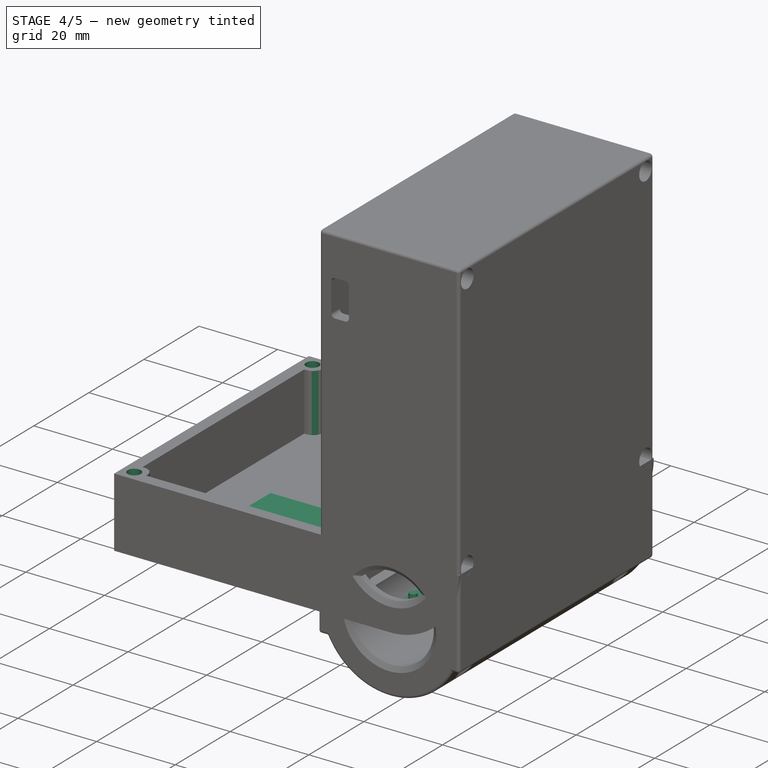
[diagram: stage 4 of 5 — iso view after this stage's code; geometry added in this stage tinted green]
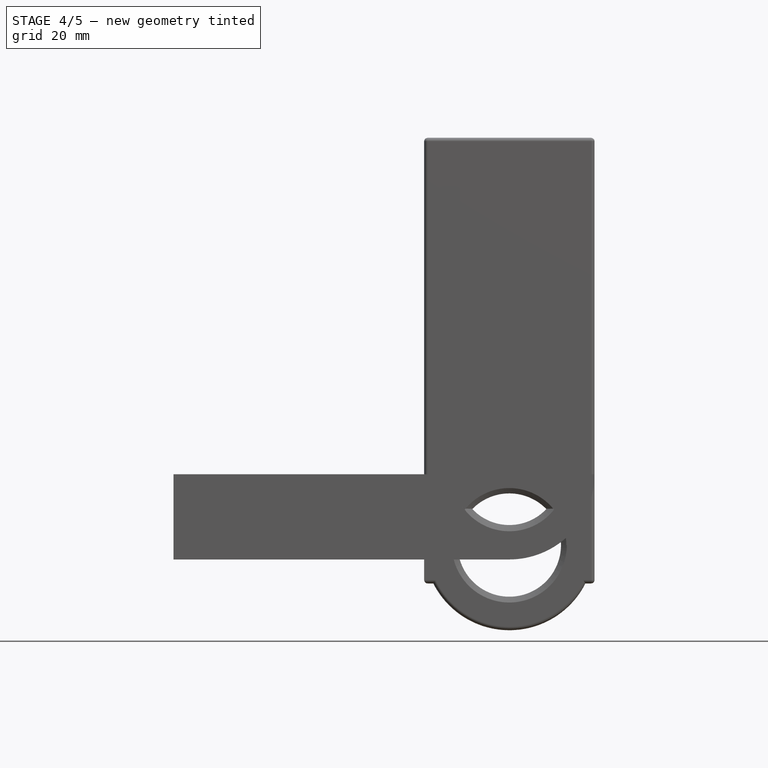
[diagram: stage 4 of 5 — front view after this stage's code; geometry added in this stage tinted green]
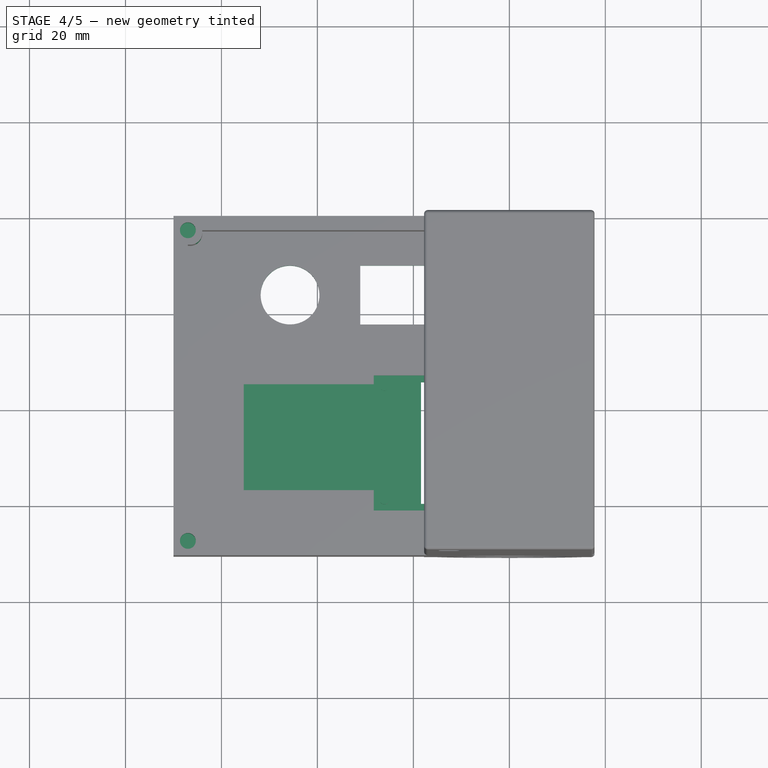
[diagram: stage 4 of 5 — top view after this stage's code; geometry added in this stage tinted green]
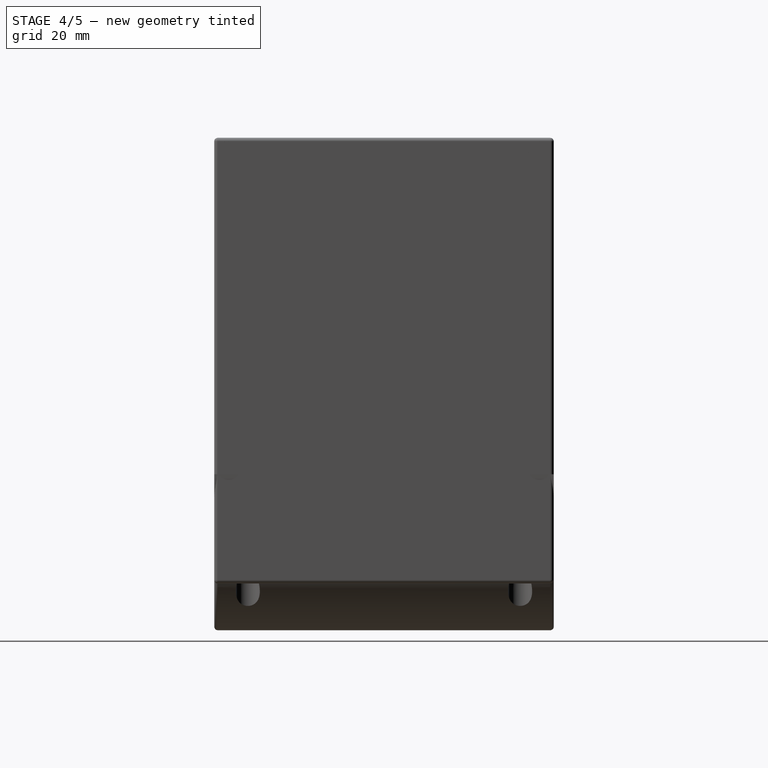
[diagram: stage 4 of 5 — right view after this stage's code; geometry added in this stage tinted green]
FEATURE [Sketcher::SketchObject] Sketch006
  ArcFitTolerance = 1e-06
  AttachmentSupport = -> [Revolution]
  FullyConstrained = true
  MakeInternals = false
  MapMode = 5
  Placement = pos=(0,-67.75,-1.5e-14) rot=(-1,0,0;1.5708rad)
  expr: Constraints[10] = <<S>>.sensor_diameter / 2
  expr: Constraints[11] = <<S>>.sensor_diameter / 2
  sketch-geometry (4):
    g0: LineSegment StartX=14.75 StartY=-14.75 StartZ=0 EndX=14.75 EndY=-6 EndZ=0
    g1: LineSegment StartX=14.75 StartY=-6 StartZ=0 EndX=12.25 EndY=-6 EndZ=0
    g2: LineSegment StartX=12.25 StartY=-6 StartZ=0 EndX=12.25 EndY=-14.75 EndZ=0
    g3: LineSegment StartX=12.25 StartY=-14.75 StartZ=0 EndX=14.75 EndY=-14.75 EndZ=0
  constraints (12):
    c: Coincident(g0,g1)
    c: Coincident(g1,g2)
    c: Coincident(g2,g3)
    c: Coincident(g3,g0)
    c: Vertical(g0)
    c: Vertical(g2)
    c: Horizontal(g1)
    c: Horizontal(g3)
    c: Distance(g0,g2) = 2.5
    c: Distance(g1,g3) = 8.75
    c: DistanceY(g2,g-1) = 14.75
    c: DistanceX(g-1,g0) = 14.75
FEATURE [PartDesign::Pad] Pad004  label="TopMountPad"
  BaseFeature = -> Revolution
  Direction = (0,1,2e-16)
  Length = 67.75
  Length2 = 10
  Placement = pos=(0,0,0) rot=(1,0,0;1.5708rad)
  Profile = -> Sketch006
  ReferenceAxis = -> Sketch006 [N_Axis]
  Refine = true
  Suppressed = false
  Type = 0
  expr: Length = <<S>>.dimension_case_width - <<S>>.dimension_wall_thickness
FEATURE [PartDesign::Body] Body001  label="X-O2Sensor_Case_Back_Body"
  AllowCompound = false
  Group = -> [Sketch007,Pad005,Sketch008,Pad006,Sketch009,Pad007,Sketch010,Pad008,Sketch011,Pocket001,Sketch012,Revolution001,Sketch013,Pad009]
  Origin = -> Origin003
  Tip = -> Pad009
FEATURE [App::Part] Part001  label="X-O2Sensor_Case_Part_Back"
  Group = -> [Body001]
  Origin = -> Origin002
FEATURE [Sketcher::SketchObject] Sketch014
  ArcFitTolerance = 1e-06
  AttachmentSupport = -> [Pad004]
  FullyConstrained = true
  MakeInternals = false
  MapMode = 5
  Placement = pos=(0,0,0) rot=(0,0,1;3.14159rad)
  expr: Constraints[10] = <<S>>.oled_width
  expr: Constraints[18] = <<S>>.oled_holes
  expr: Constraints[19] = <<S>>.oled_holes / 2 + <<S>>.oled_hole_top_edge
  expr: Constraints[20] = <<S>>.oled_length - <<S>>.oled_holes / 2 - <<S>>.oled_hole_bottom_edge
  expr: Constraints[21] = <<S>>.oled_holes / 2 + <<S>>.oled_hole_side_edge
  expr: Constraints[22] = <<S>>.oled_holes / 2 + <<S>>.oled_hole_side_edge
  expr: Constraints[23] = <<S>>.dimension_oled_edge
  expr: Constraints[9] = <<S>>.oled_length
  sketch-geometry (8):
    g0: LineSegment StartX=0 StartY=61.15 StartZ=0 EndX=0 EndY=33 EndZ=0
    g1: LineSegment StartX=0 StartY=33 StartZ=0 EndX=28.25 EndY=33 EndZ=0
    g2: LineSegment StartX=28.25 StartY=33 StartZ=0 EndX=28.25 EndY=61.15 EndZ=0
    g3: LineSegment StartX=28.25 StartY=61.15 StartZ=0 EndX=0 EndY=61.15 EndZ=0
    g4: Circle CenterX=26.025 CenterY=35.225 CenterZ=0 NormalX=0 NormalY=0 NormalZ=1 AngleXU=0 Radius=0.975
    g5: Circle CenterX=2.225 CenterY=35.225 CenterZ=0 NormalX=0 NormalY=0 NormalZ=1 AngleXU=0 Radius=0.975
    g6: Circle CenterX=2.225 CenterY=58.925 CenterZ=0 NormalX=0 NormalY=0 NormalZ=1 AngleXU=0 Radius=0.975
    g7: Circle CenterX=26.025 CenterY=58.925 CenterZ=0 NormalX=0 NormalY=0 NormalZ=1 AngleXU=0 Radius=0.975
  constraints (24):
    c: Coincident(g0,g1)
    c: Coincident(g1,g2)
    c: Coincident(g2,g3)
    c: Coincident(g3,g0)
    c: Vertical(g0)
    c: Vertical(g2)
    c: Horizontal(g1)
    c: Horizontal(g3)
    c: PointOnObject(g0,g-2)
    c: DistanceX(g3,g3) = 28.25
    c: DistanceY(g2,g2) = 28.15
    c: DistanceY(g4,g5) = 0
    c: DistanceY(g7,g6) = 0
    c: DistanceX(g7,g4) = 0
    c: DistanceX(g5,g6) = 0
    c: Equal(g4,g5)
    c: Equal(g4,g6)
    c: Equal(g4,g7)
    c: Diameter(g4) = 1.95
    c: DistanceX(g0,g5) = 2.225
    c: DistanceX(g0,g4) = 26.025
    c: DistanceY(g0,g5) = 2.225
    c: DistanceY(g6,g0) = 2.225
    c: DistanceY(g-1,g0) = 33
FEATURE [PartDesign::Pocket] Pocket002  label="Oled_Board_Pocket"
  BaseFeature = -> Pad004
  Direction = (0,0,-1)
  Length = 0.85
  Length2 = 5
  Placement = pos=(0,0,0) rot=(1,0,0;1.5708rad)
  Profile = -> Sketch014
  ReferenceAxis = -> Sketch014 [N_Axis]
  Refine = true
  Suppressed = false
  Type = 0
  expr: Length = <<S>>.dimension_wall_thickness - <<S>>.oled_screen_height - 0.4
FEATURE [Sketcher::SketchObject] Sketch015
  ArcFitTolerance = 1e-06
  AttachmentSupport = -> [Pocket002]
  FullyConstrained = true
  MakeInternals = false
  MapMode = 5
  Placement = pos=(0,0,-0.85) rot=(0,0,1;3.14159rad)
  expr: Constraints[10] = 4.65
  expr: Constraints[11] = <<S>>.dimension_oled_edge + (<<S>>.oled_width - <<S>>.oled_screen_width) / 2
  expr: Constraints[8] = <<S>>.oled_screen_length
  expr: Constraints[9] = <<S>>.oled_screen_width
  sketch-geometry (4):
    g0: LineSegment StartX=4.65 StartY=59.75 StartZ=0 EndX=4.65 EndY=34.4 EndZ=0
    g1: LineSegment StartX=4.65 StartY=34.4 StartZ=0 EndX=21.5 EndY=34.4 EndZ=0
    g2: LineSegment StartX=21.5 StartY=34.4 StartZ=0 EndX=21.5 EndY=59.75 EndZ=0
    g3: LineSegment StartX=21.5 StartY=59.75 StartZ=0 EndX=4.65 EndY=59.75 EndZ=0
  constraints (12):
    c: Coincident(g0,g1)
    c: Coincident(g1,g2)
    c: Coincident(g2,g3)
    c: Coincident(g3,g0)
    c: Vertical(g0)
    c: Vertical(g2)
    c: Horizontal(g1)
    c: Horizontal(g3)
    c: DistanceX(g3,g3) = 16.85
    c: DistanceY(g2,g2) = 25.35
    c: DistanceX(g-1,g0) = 4.65
    c: DistanceY(g-1,g0) = 34.4
FEATURE [PartDesign::Pocket] Pocket003  label="InnerScreenPocket"
  BaseFeature = -> Pocket002
  Direction = (0,0,-1)
  Length = 1.25
  Length2 = 5
  Placement = pos=(0,0,0) rot=(1,0,0;1.5708rad)
  Profile = -> Sketch015
  ReferenceAxis = -> Sketch015 [N_Axis]
  Refine = true
  Suppressed = false
  Type = 0
  expr: Length = <<S>>.dimension_wall_thickness - <<S>>.oled_screen_height
FEATURE [PartDesign::Body] Body002  label="ClearScreeCoverTestBody"
  AllowCompound = false
  Group = -> [Sketch016,Pad010,Sketch017,Pad011]
  Origin = -> Origin005
  Tip = -> Pad011
FEATURE [App::Part] Part002  label="ClearScreenCoverTest"
  Group = -> [Body002]
  Origin = -> Origin004
FEATURE [Sketcher::SketchObject] Sketch018
  ArcFitTolerance = 1e-06
  AttachmentSupport = -> [Pocket003]
  FullyConstrained = true
  MakeInternals = false
  MapMode = 5
  Placement = pos=(0,0,-2.1) rot=(0,0,1;3.14159rad)
  expr: Constraints[11] = <<S>>.dimension_oled_edge + (<<S>>.oled_width - <<S>>.oled_screen_width) / 2
  expr: Constraints[8] = <<S>>.oled_screen_length - <<S>>.oled_screen_bottom
  expr: Constraints[9] = <<S>>.oled_screen_width
  sketch-geometry (4):
    g0: LineSegment StartX=4.55 StartY=59.75 StartZ=0 EndX=4.55 EndY=34.4 EndZ=0
    g1: LineSegment StartX=4.55 StartY=34.4 StartZ=0 EndX=18.4 EndY=34.4 EndZ=0
    g2: LineSegment StartX=18.4 StartY=34.4 StartZ=0 EndX=18.4 EndY=59.75 EndZ=0
    g3: LineSegment StartX=18.4 StartY=59.75 StartZ=0 EndX=4.55 EndY=59.75 EndZ=0
  constraints (12):
    c: Coincident(g0,g1)
    c: Coincident(g1,g2)
    c: Coincident(g2,g3)
    c: Coincident(g3,g0)
    c: Vertical(g0)
    c: Vertical(g2)
    c: Horizontal(g1)
    c: Horizontal(g3)
    c: DistanceX(g3,g3) = 13.85
    c: DistanceY(g2,g2) = 25.35
    c: DistanceX(g-1,g0) = 4.55
    c: DistanceY(g-1,g0) = 34.4
FEATURE [PartDesign::Pocket] Pocket004  label="ScreenPocketHole"
  BaseFeature = -> Pocket003
  Direction = (0,0,-1)
  Length = 5
  Length2 = 5
  Placement = pos=(0,0,0) rot=(1,0,0;1.5708rad)
  Profile = -> Sketch018
  ReferenceAxis = -> Sketch018 [N_Axis]
  Refine = true
  Suppressed = false
  Type = 1
FEATURE [PartDesign::Chamfer] Chamfer  label="ScreenPocketChamfer"
  Angle = 45
  Base = -> Pocket004 [Edge10,Edge11,Edge8,Edge9]
  BaseFeature = -> Pocket004
  ChamferType = 0
  FlipDirection = false
  Placement = pos=(0,0,0) rot=(1,0,0;1.5708rad)
  Refine = true
  Size = 0.4
  Size2 = 1
  SupportTransform = false
  Suppressed = false
  UseAllEdges = false
FEATURE [Sketcher::SketchObject] Sketch019
  ArcFitTolerance = 1e-06
  AttachmentSupport = -> [Chamfer]
  FullyConstrained = true
  MakeInternals = false
  MapMode = 5
  Placement = pos=(0,0,0) rot=(0,0,1;3.14159rad)
  expr: Constraints[10] = <<S>>.oled_holes / 2 + <<S>>.oled_hole_top_edge
  expr: Constraints[11] = <<S>>.oled_length - <<S>>.oled_holes / 2 - <<S>>.oled_hole_bottom_edge
  expr: Constraints[9] = <<S>>.dimension_oled_edge + <<S>>.oled_holes / 2 + <<S>>.oled_hole_side_edge
  sketch-geometry (4):
    g0: Circle CenterX=26.025 CenterY=35.225 CenterZ=0 NormalX=0 NormalY=0 NormalZ=1 AngleXU=0 Radius=0.975
    g1: Circle CenterX=2.225 CenterY=35.225 CenterZ=0 NormalX=0 NormalY=0 NormalZ=1 AngleXU=0 Radius=0.975
    g2: Circle CenterX=2.225 CenterY=58.925 CenterZ=0 NormalX=0 NormalY=0 NormalZ=1 AngleXU=0 Radius=0.975
    g3: Circle CenterX=26.025 CenterY=58.925 CenterZ=0 NormalX=0 NormalY=0 NormalZ=1 AngleXU=0 Radius=0.975
  constraints (12):
    c: DistanceY(g0,g1) = 0
    c: DistanceY(g3,g2) = 0
    c: DistanceX(g3,g0) = 0
    c: DistanceX(g1,g2) = 0
    c: Equal(g0,g1)
    c: Equal(g0,g2)
    c: Equal(g0,g3)
    c: Diameter(g0) = 1.95
    c: DistanceY(g1,g2) = 23.7
    c: DistanceY(g-1,g1) = 35.225
    c: DistanceX(g-1,g1) = 2.225
    c: DistanceX(g-1,g0) = 26.025
FEATURE [PartDesign::Pad] Pad012  label="Oled_Screw_Pad"
  BaseFeature = -> Chamfer
  Direction = (0,0,1)
  Length = 1
  Length2 = 10
  Placement = pos=(0,0,0) rot=(1,0,0;1.5708rad)
  Profile = -> Sketch019
  ReferenceAxis = -> Sketch019 [N_Axis]
  Refine = true
  Suppressed = false
  Type = 0
FEATURE [Sketcher::SketchObject] Sketch020
  ArcFitTolerance = 1e-06
  AttachmentSupport = -> [Pad012]
  FullyConstrained = false
  MakeInternals = false
  MapMode = 5
  Placement = pos=(0,-7e-16,-3) rot=(1,0,0;3.14159rad)
  expr: Constraints[10] = <<S>>.switch_length
  expr: Constraints[11] = <<S>>.switch_width / 2
  expr: Constraints[12] = <<S>>.nipple_thread_diameter / 2 + 5
  expr: Constraints[8] = <<S>>.button_diameter
  expr: Constraints[9] = <<S>>.switch_width
  sketch-geometry (5):
    g0: Circle CenterX=-45.7042 CenterY=16.243 CenterZ=0 NormalX=0 NormalY=0 NormalZ=1 AngleXU=0 Radius=6.125
    g1: LineSegment StartX=-31.075 StartY=22.393 StartZ=0 EndX=-31.075 EndY=10.093 EndZ=0
    g2: LineSegment StartX=-31.075 StartY=10.093 StartZ=0 EndX=-11.875 EndY=10.093 EndZ=0
    g3: LineSegment StartX=-11.875 StartY=10.093 StartZ=0 EndX=-11.875 EndY=22.393 EndZ=0
    g4: LineSegment StartX=-11.875 StartY=22.393 StartZ=0 EndX=-31.075 EndY=22.393 EndZ=0
  constraints (13):
    c: Coincident(g1,g2)
    c: Coincident(g2,g3)
    c: Coincident(g3,g4)
    c: Coincident(g4,g1)
    c: Vertical(g1)
    c: Vertical(g3)
    c: Horizontal(g2)
    c: Horizontal(g4)
    c: Diameter(g0) = 12.25
    c: DistanceY(g3,g3) = 12.3
    c: DistanceX(g2,g2) = 19.2
    c: DistanceY(g0,g3) = 6.15
    c: DistanceX(g2,g-1) = 11.875
FEATURE [PartDesign::Pocket] Pocket005  label="SwitchButtonPockets"
  BaseFeature = -> Pad012
  Direction = (0,0,1)
  Length = 3
  Length2 = 5
  Placement = pos=(0,0,0) rot=(1,0,0;1.5708rad)
  Profile = -> Sketch020
  ReferenceAxis = -> Sketch020 [N_Axis]
  Refine = true
  Suppressed = false
  Type = 0
  expr: Length = <<S>>.dimension_wall_thickness
FEATURE [PartDesign::Fillet] Fillet  label="InsertBottomFillet"
  Base = -> Pocket005 [Edge83,Edge89]
  BaseFeature = -> Pocket005
  Placement = pos=(0,0,0) rot=(1,0,0;1.5708rad)
  Radius = 2.5
  Refine = true
  SupportTransform = false
  Suppressed = false
  UseAllEdges = false
  expr: Radius = <<S>>.dimension_wall_thickness - 0.5
FEATURE [Sketcher::SketchObject] Sketch021
  ArcFitTolerance = 1e-06
  AttachmentSupport = -> [Fillet]
  FullyConstrained = true
  MakeInternals = false
  MapMode = 5
  Placement = pos=(-6.11e-14,3e-16,14.75) rot=(0,0,1;3.14159rad)
  expr: Constraints[10] = <<S>>.dimension_case_width - <<S>>.dimension_wall_thickness
  expr: Constraints[11] = <<S>>.dimension_case_length - <<S>>.dimension_wall_thickness
  expr: Constraints[7] = <<S>>.dimension_case_width - 7.5
  expr: Constraints[8] = <<S>>.dimension_wall_thickness
  sketch-geometry (4):
    g0: Circle CenterX=67 CenterY=67.75 CenterZ=0 NormalX=0 NormalY=0 NormalZ=1 AngleXU=0 Radius=1.65
    g1: Circle CenterX=67 CenterY=3 CenterZ=0 NormalX=0 NormalY=0 NormalZ=1 AngleXU=0 Radius=1.65
    g2: Circle CenterX=-15 CenterY=63.25 CenterZ=0 NormalX=0 NormalY=0 NormalZ=1 AngleXU=0 Radius=1.65
    g3: Circle CenterX=-15 CenterY=7.5 CenterZ=0 NormalX=0 NormalY=0 NormalZ=1 AngleXU=0 Radius=1.65
  constraints (12):
    c: Diameter(g0) = 3.3
    c: Diameter(g1) = 3.3
    c: Diameter(g2) = 3.3
    c: Diameter(g3) = 3.3
    c: DistanceX(g3,g-1) = 15
    c: DistanceX(g2,g3) = 0
    c: DistanceY(g-1,g3) = 7.5
    c: DistanceY(g-1,g2) = 63.25
    c: DistanceY(g-1,g1) = 3
    c: DistanceX(g0,g1) = 0
    c: DistanceY(g-1,g0) = 67.75
    c: DistanceX(g-1,g1) = 67
FEATURE [PartDesign::Pocket] Pocket006  label="InsertPockets"
  BaseFeature = -> Fillet
  Direction = (4.1e-15,0,-1)
  Length = 5
  Length2 = 5
  Placement = pos=(0,0,0) rot=(1,0,0;1.5708rad)
  Profile = -> Sketch021
  ReferenceAxis = -> Sketch021 [N_Axis]
  Refine = true
  Suppressed = false
  Type = 0
FEATURE [Sketcher::SketchObject] Sketch022
  ArcFitTolerance = 1e-06
  AttachmentSupport = -> [Pocket006]
  FullyConstrained = false
  MakeInternals = false
  MapMode = 5
  Placement = pos=(0,-7e-16,-3) rot=(1,0,0;3.14159rad)
  sketch-geometry (10):
    g0: LineSegment StartX=-28.3928 StartY=55.4459 StartZ=0 EndX=-38.8953 EndY=49.6757 EndZ=0
    g1: LineSegment StartX=-52.5872 StartY=42.1533 StartZ=0 EndX=-39.5162 EndY=47.4648 EndZ=0
    g2: LineSegment StartX=-25.5239 StartY=53.1507 StartZ=0 EndX=-28.3928 EndY=55.4459 EndZ=0
    g3: LineSegment StartX=-24.8545 StartY=43.4921 StartZ=0 EndX=-36.5823 EndY=48.657 EndZ=0
    g4: LineSegment StartX=-53.7347 StartY=56.2109 StartZ=0 EndX=-41.1218 EndY=48.4524 EndZ=0
    g5: LineSegment StartX=-25.9064 StartY=39.0931 StartZ=0 EndX=-24.8545 EndY=43.4921 EndZ=0
    g6: LineSegment StartX=-41.1218 StartY=48.4524 StartZ=0 EndX=-52.5872 EndY=42.1533 EndZ=0
    g7: LineSegment StartX=-36.5823 StartY=48.657 StartZ=0 EndX=-25.5239 EndY=53.1507 EndZ=0
    g8: LineSegment StartX=-39.5162 StartY=47.4648 StartZ=0 EndX=-25.9064 EndY=39.0931 EndZ=0
    g9: LineSegment StartX=-38.8953 StartY=49.6757 StartZ=0 EndX=-53.7347 EndY=56.2109 EndZ=0
  constraints (12):
    c: Coincident(g6,g1)
    c: Coincident(g7,g2)
    c: Coincident(g2,g0)
    c: Coincident(g9,g4)
    c: Coincident(g8,g5)
    c: Coincident(g5,g3)
    c: PointOnObject(g0,g9)
    c: PointOnObject(g1,g8)
    c: Coincident(g4,g6)
    c: PointOnObject(g8,g1)
    c: Coincident(g3,g7)
    c: PointOnObject(g9,g0)
FEATURE [Sketcher::SketchObject] Sketch023
  ArcFitTolerance = 1e-06
  AttachmentSupport = -> [XY_Plane007]
  FullyConstrained = false
  MakeInternals = false
  MapMode = 5
  sketch-geometry (4):
    g0: LineSegment StartX=-23.3619 StartY=-56.9109 StartZ=0 EndX=-23.3619 EndY=-34.8596 EndZ=0
    g1: LineSegment StartX=-23.3619 StartY=-34.8596 StartZ=0 EndX=-55.3491 EndY=-34.8596 EndZ=0
    g2: LineSegment StartX=-55.3491 StartY=-34.8596 StartZ=0 EndX=-55.3491 EndY=-56.9109 EndZ=0
    g3: LineSegment StartX=-55.3491 StartY=-56.9109 StartZ=0 EndX=-23.3619 EndY=-56.9109 EndZ=0
  constraints (8):
    c: Coincident(g0,g1)
    c: Coincident(g1,g2)
    c: Coincident(g2,g3)
    c: Coincident(g3,g0)
    c: Vertical(g0)
    c: Vertical(g2)
    c: Horizontal(g1)
    c: Horizontal(g3)
FEATURE [PartDesign::Pad] Pad013
  Direction = (0,0,1)
  Length = 0.5
  Length2 = 10
  Profile = -> Sketch023
  ReferenceAxis = -> Sketch023 [N_Axis]
  Refine = true
  Suppressed = false
  Type = 0
FEATURE [PartDesign::Body] Body003  label="XBody"
  AllowCompound = false
  Group = -> [Sketch023,Pad013,Sketch024,Pad014]
  Origin = -> Origin007
  Tip = -> Pad014
FEATURE [App::Part] Part003  label="X"
  Group = -> [Body003]
  Origin = -> Origin006
FEATURE [PartDesign::Pocket] Pocket007  label="XPocket"
  BaseFeature = -> Pocket006
  Direction = (0,0,1)
  Length = 1
  Length2 = 5
  Placement = pos=(0,0,0) rot=(1,0,0;1.5708rad)
  Profile = -> Sketch022
  ReferenceAxis = -> Sketch022 [N_Axis]
  Refine = true
  Suppressed = false
  Type = 0
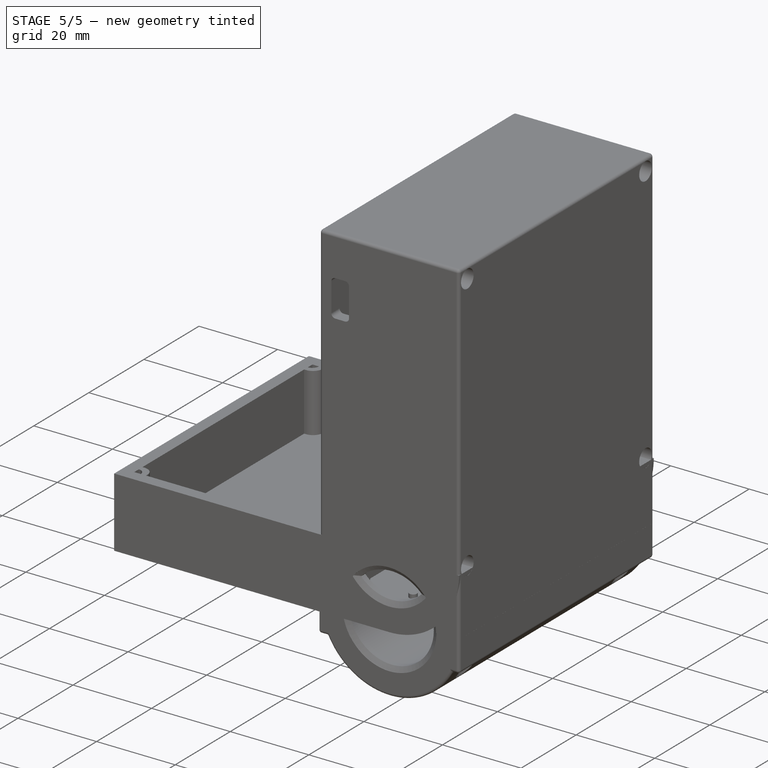
[diagram: stage 5 of 5 — iso view after this stage's code; geometry added in this stage tinted green]
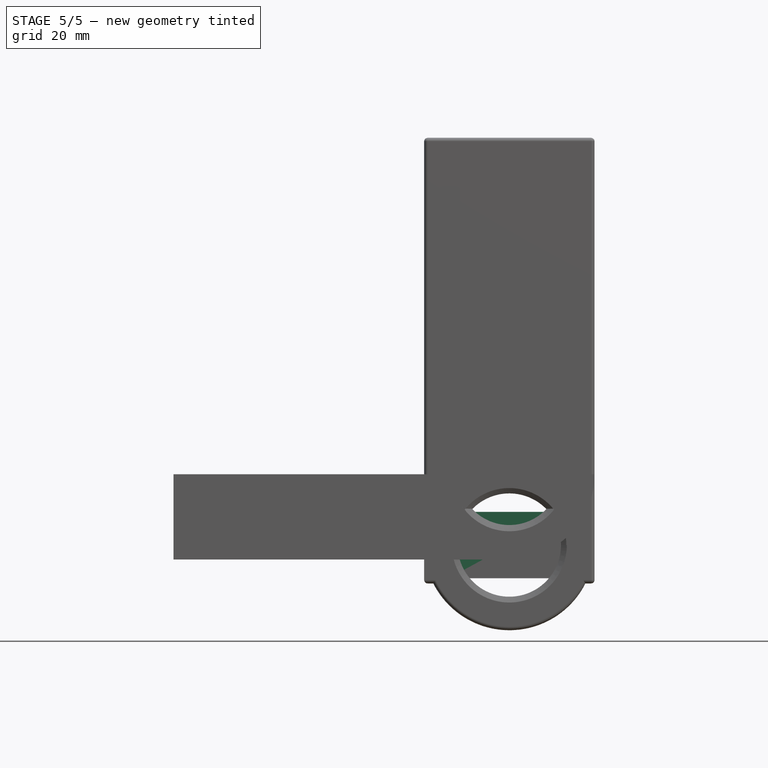
[diagram: stage 5 of 5 — front view after this stage's code; geometry added in this stage tinted green]
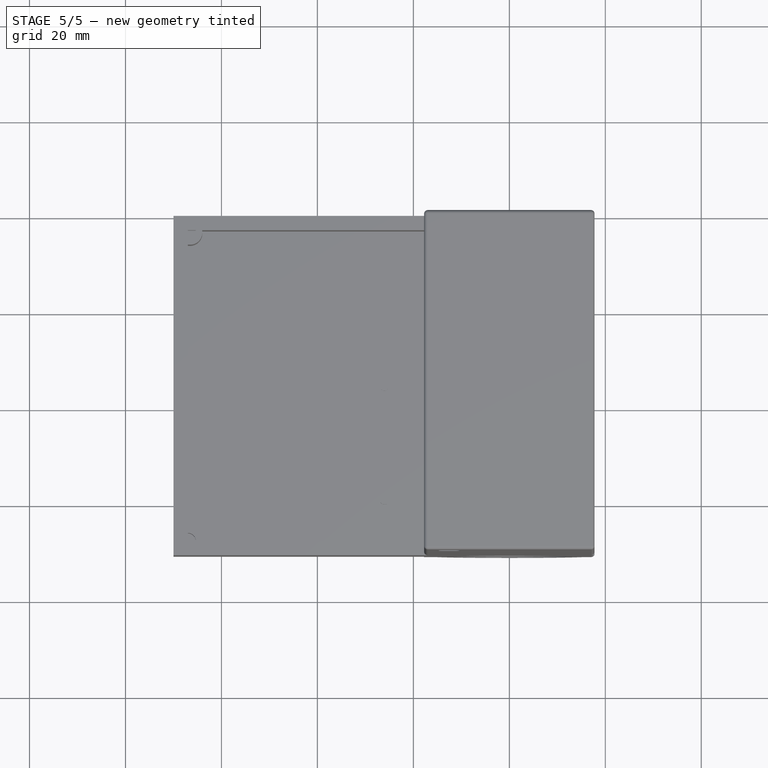
[diagram: stage 5 of 5 — top view after this stage's code; geometry added in this stage tinted green]
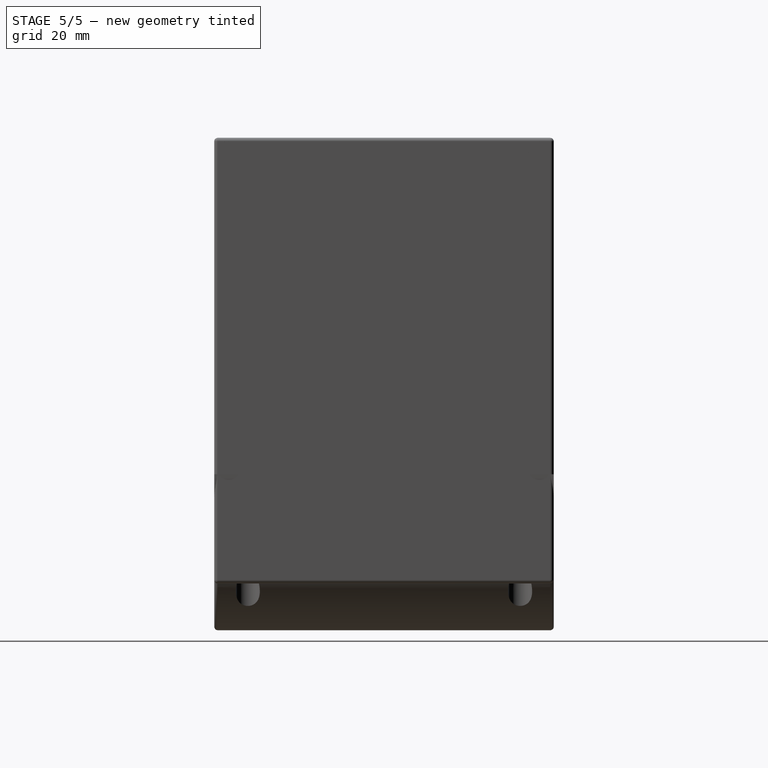
[diagram: stage 5 of 5 — right view after this stage's code; geometry added in this stage tinted green]
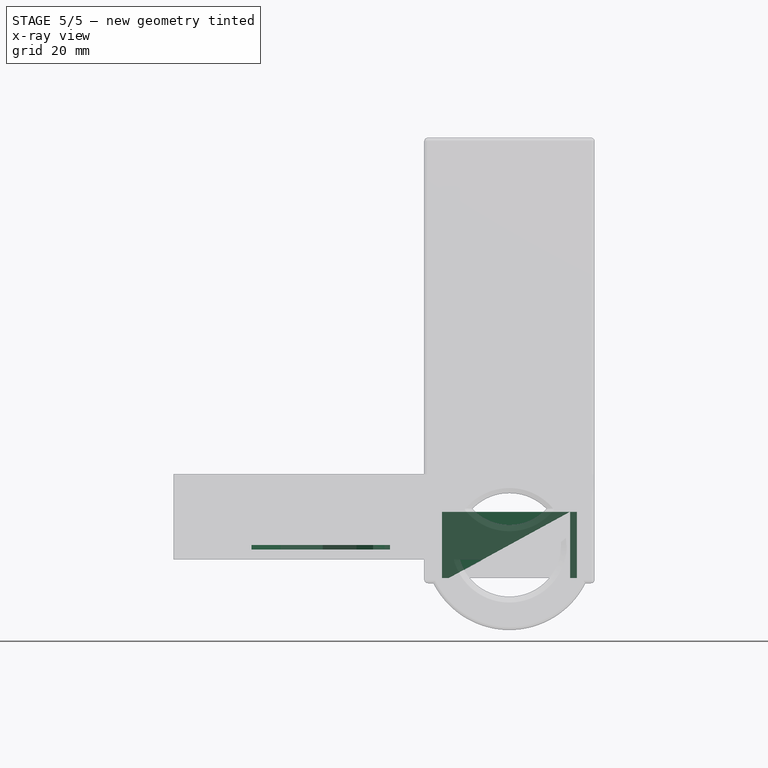
[diagram: stage 5 of 5 — x-ray composite at the front view; earlier geometry ghosted, this stage's added geometry solid]
FEATURE [Sketcher::SketchObject] Sketch007
  ArcFitTolerance = 1e-06
  AttachmentSupport = -> [XZ_Plane003]
  FullyConstrained = true
  MakeInternals = false
  MapMode = 5
  Placement = pos=(0,0,0) rot=(1,0,0;1.5708rad)
  expr: Constraints[13] = <<S>>.dimension_wall_thickness
  expr: Constraints[17] = <<S>>.dimension_case_length
  expr: Constraints[1] = <<S>>.sensor_diameter
  expr: Constraints[8] = <<S>>.sensor_diameter + <<S>>.dimension_wall_thickness * 2
  sketch-geometry (6):
    g0: ArcOfCircle CenterX=0 CenterY=14.75 CenterZ=0 NormalX=0 NormalY=0 NormalZ=1 AngleXU=0 Radius=14.75 StartAngle=4.71239 EndAngle=6.28319
    g1: LineSegment StartX=-2.7e-15 StartY=0 StartZ=0 EndX=-70 EndY=0 EndZ=0
    g2: LineSegment StartX=-70 StartY=0 StartZ=0 EndX=-70 EndY=-3 EndZ=0
    g3: LineSegment StartX=-70 StartY=-3 StartZ=0 EndX=4.27649e-05 EndY=-3 EndZ=0
    g4: ArcOfCircle CenterX=0 CenterY=14.75 CenterZ=0 NormalX=0 NormalY=0 NormalZ=1 AngleXU=0 Radius=17.75 StartAngle=4.71239 EndAngle=6.28319
    g5: LineSegment StartX=14.75 StartY=14.75 StartZ=0 EndX=17.75 EndY=14.75 EndZ=0
  constraints (18):
    c: PointOnObject(g0,g-2)
    c: Diameter(g0) = 29.5
    c: Coincident(g1,g2)
    c: Coincident(g2,g3)
    c: Horizontal(g1)
    c: Horizontal(g3)
    c: Vertical(g2)
    c: Coincident(g4,g0)
    c: Diameter(g4) = 35.5
    c: Horizontal(g5)
    c: PointOnObject(g0,g5)
    c: Coincident(g4,g5)
    c: Coincident(g5,g0)
    c: DistanceY(g3,g0) = 3
    c: Coincident(g3,g4)
    c: Coincident(g1,g-1)
    c: Coincident(g0,g1)
    c: DistanceX(g2,g3) = 70
FEATURE [PartDesign::Pad] Pad005  label="CaseFacePad001"
  Direction = (0,-1,2e-16)
  Length = 70.75
  Length2 = 10
  Placement = pos=(0,0,0) rot=(1,0,0;1.5708rad)
  Profile = -> Sketch007
  ReferenceAxis = -> Sketch007 [N_Axis]
  Refine = true
  Suppressed = false
  Type = 0
  expr: Length = <<S>>.dimension_case_width
FEATURE [Sketcher::SketchObject] Sketch008
  ArcFitTolerance = 1e-06
  AttachmentSupport = -> [Pad005]
  FullyConstrained = true
  MakeInternals = false
  MapMode = 5
  Placement = pos=(0,0,0) rot=(0,0,1;3.14159rad)
  expr: Constraints[18] = <<S>>.dimension_wall_thickness
  expr: Constraints[19] = <<S>>.dimension_wall_thickness
  expr: Constraints[22] = <<S>>.dimension_wall_thickness
  expr: Constraints[23] = <<S>>.dimension_wall_thickness
  expr: Constraints[24] = <<S>>.dimension_case_length
  expr: Constraints[3] = <<S>>.dimension_case_width
  expr: Constraints[4] = <<S>>.dimension_case_length
  sketch-geometry (8):
    g0: LineSegment StartX=70 StartY=0 StartZ=0 EndX=70 EndY=70.75 EndZ=0
    g1: LineSegment StartX=67 StartY=67.75 StartZ=0 EndX=67 EndY=3 EndZ=0
    g2: LineSegment StartX=70 StartY=70.75 StartZ=0 EndX=0 EndY=70.75 EndZ=0
    g3: LineSegment StartX=0 StartY=70.75 StartZ=0 EndX=0 EndY=67.75 EndZ=0
    g4: LineSegment StartX=0 StartY=67.75 StartZ=0 EndX=67 EndY=67.75 EndZ=0
    g5: LineSegment StartX=67 StartY=3 StartZ=0 EndX=0 EndY=3 EndZ=0
    g6: LineSegment StartX=0 StartY=3 StartZ=0 EndX=0 EndY=0 EndZ=0
    g7: LineSegment StartX=0 StartY=0 StartZ=0 EndX=70 EndY=0 EndZ=0
  constraints (25):
    c: Vertical(g0)
    c: Vertical(g1)
    c: PointOnObject(g0,g-1)
    c: DistanceY(g0,g0) = 70.75
    c: DistanceX(g-1,g0) = 70
    c: Coincident(g2,g3)
    c: Coincident(g3,g4)
    c: Horizontal(g2)
    c: Horizontal(g4)
    c: Vertical(g3)
    c: Coincident(g2,g0)
    c: PointOnObject(g3,g-2)
    c: Coincident(g5,g6)
    c: Coincident(g6,g7)
    c: Vertical(g6)
    c: Horizontal(g5)
    c: Horizontal(g7)
    c: PointOnObject(g5,g-2)
    c: DistanceY(g6,g5) = 3
    c: DistanceY(g3,g3) = 3
    c: Coincident(g1,g4)
    c: Coincident(g5,g1)
    c: DistanceX(g1,g0) = 3
    c: DistanceY(g0,g1) = 3
    c: DistanceX(g7,g7) = 70
FEATURE [PartDesign::Pad] Pad006  label="CaseSideStraightPads001"
  BaseFeature = -> Pad005
  Direction = (0,0,1)
  Length = 14.75
  Length2 = 10
  Placement = pos=(0,0,0) rot=(1,0,0;1.5708rad)
  Profile = -> Sketch008
  ReferenceAxis = -> Sketch008 [N_Axis]
  Refine = true
  Suppressed = false
  Type = 0
  expr: Length = <<S>>.sensor_diameter / 2
FEATURE [Sketcher::SketchObject] Sketch009
  ArcFitTolerance = 1e-06
  AttachmentSupport = -> [Pad006]
  FullyConstrained = true
  MakeInternals = false
  MapMode = 5
  Placement = pos=(0,-70.75,-1.57e-14) rot=(1,0,0;1.5708rad)
  expr: Constraints[1] = <<S>>.sensor_diameter
  sketch-geometry (3):
    g0: ArcOfCircle CenterX=0 CenterY=14.75 CenterZ=0 NormalX=0 NormalY=0 NormalZ=1 AngleXU=0 Radius=14.75 StartAngle=4.71239 EndAngle=6.28319
    g1: LineSegment StartX=-2.7e-15 StartY=0 StartZ=0 EndX=5.2e-15 EndY=14.75 EndZ=0
    g2: LineSegment StartX=5.2e-15 StartY=14.75 StartZ=0 EndX=14.75 EndY=14.75 EndZ=0
  constraints (9):
    c: PointOnObject(g0,g-2)
    c: Diameter(g0) = 29.5
    c: Coincident(g1,g-1)
    c: Coincident(g0,g1)
    c: Horizontal(g2)
    c: PointOnObject(g0,g2)
    c: Coincident(g1,g2)
    c: Coincident(g2,g0)
    c: DistanceX(g2,g2) = 14.75
FEATURE [PartDesign::Pad] Pad007  label="CaseSideCurvePad003"
  BaseFeature = -> Pad006
  Direction = (0,-1,2e-16)
  Length = 3
  Length2 = 10
  Placement = pos=(0,0,0) rot=(1,0,0;1.5708rad)
  Profile = -> Sketch009
  ReferenceAxis = -> Sketch009 [N_Axis]
  Refine = true
  Reversed = true
  Suppressed = false
  Type = 0
  expr: Length = <<S>>.dimension_wall_thickness
FEATURE [Sketcher::SketchObject] Sketch010
  ArcFitTolerance = 1e-06
  AttachmentSupport = -> [Pad007]
  FullyConstrained = true
  MakeInternals = false
  MapMode = 5
  Placement = pos=(0,-3e-16,0) rot=(-1,0,0;1.5708rad)
  expr: Constraints[1] = <<S>>.sensor_diameter
  sketch-geometry (3):
    g0: ArcOfCircle CenterX=0 CenterY=-14.75 CenterZ=0 NormalX=0 NormalY=0 NormalZ=1 AngleXU=0 Radius=14.75 StartAngle=0 EndAngle=1.5708
    g1: LineSegment StartX=0 StartY=-14.75 StartZ=0 EndX=9e-16 EndY=0 EndZ=0
    g2: LineSegment StartX=14.75 StartY=-14.75 StartZ=0 EndX=0 EndY=-14.75 EndZ=0
  constraints (9):
    c: PointOnObject(g0,g-2)
    c: Diameter(g0) = 29.5
    c: Coincident(g1,g0)
    c: Coincident(g1,g-1)
    c: Horizontal(g2)
    c: PointOnObject(g0,g2)
    c: PointOnObject(g2,g1)
    c: Coincident(g0,g1)
    c: Coincident(g2,g0)
FEATURE [PartDesign::Pad] Pad008  label="CaseSideCurvePad004"
  BaseFeature = -> Pad007
  Direction = (0,1,2e-16)
  Length = 3
  Length2 = 10
  Placement = pos=(0,0,0) rot=(1,0,0;1.5708rad)
  Profile = -> Sketch010
  ReferenceAxis = -> Sketch010 [N_Axis]
  Refine = true
  Reversed = true
  Suppressed = false
  Type = 0
  expr: Length = <<S>>.dimension_wall_thickness
FEATURE [Sketcher::SketchObject] Sketch011
  ArcFitTolerance = 1e-06
  AttachmentSupport = -> [Pad008]
  FullyConstrained = true
  MakeInternals = false
  MapMode = 5
  Placement = pos=(0,-70.75,-1.57e-14) rot=(1,0,0;1.5708rad)
  expr: Constraints[1] = <<S>>.nipple_thread_diameter + <<S>>.dimension_adapter_wall_thickness * 2
  expr: Constraints[2] = <<S>>.sensor_diameter / 2
  sketch-geometry (2):
    g0: ArcOfCircle CenterX=0 CenterY=14.75 CenterZ=0 NormalX=0 NormalY=0 NormalZ=1 AngleXU=0 Radius=11.875 StartAngle=3.14159 EndAngle=6.28319
    g1: LineSegment StartX=-11.875 StartY=14.75 StartZ=0 EndX=11.875 EndY=14.75 EndZ=0
  constraints (7):
    c: PointOnObject(g0,g-2)
    c: Diameter(g0) = 23.75
    c: DistanceY(g-1,g0) = 14.75
    c: DistanceY(g0,g0) = 0
    c: DistanceY(g0,g0) = 0
    c: Coincident(g1,g0)
    c: Coincident(g1,g0)
FEATURE [PartDesign::Pocket] Pocket001  label="InsertThruPockets001"
  BaseFeature = -> Pad008
  Direction = (0,1,-2e-16)
  Length = 5
  Length2 = 5
  Placement = pos=(0,0,0) rot=(1,0,0;1.5708rad)
  Profile = -> Sketch011
  ReferenceAxis = -> Sketch011 [N_Axis]
  Refine = true
  Suppressed = false
  Type = 1
FEATURE [Sketcher::SketchObject] Sketch012
  ArcFitTolerance = 1e-06
  AttachmentSupport = -> [Pocket001]
  FullyConstrained = true
  MakeInternals = false
  MapMode = 5
  Placement = pos=(0,7e-16,14.75) rot=(0,0,1;3.14159rad)
  expr: Constraints[40] = <<S>>.dimension_case_width
  expr: Constraints[41] = (<<S>>.nipple_thread_diameter + <<S>>.dimension_adapter_wall_thickness * 2) / 2
  sketch-geometry (14):
    g0: LineSegment StartX=13.174 StartY=70 StartZ=0 EndX=11.875 EndY=70.75 EndZ=0
    g1: LineSegment StartX=11.875 StartY=70.75 StartZ=0 EndX=10.576 EndY=70 EndZ=0
    g2: LineSegment StartX=10.576 StartY=70 StartZ=0 EndX=10.576 EndY=68.5 EndZ=0
    g3: LineSegment StartX=10.576 StartY=68.5 StartZ=0 EndX=11.875 EndY=67.75 EndZ=0
    g4: LineSegment StartX=11.875 StartY=67.75 StartZ=0 EndX=13.174 EndY=68.5 EndZ=0
    g5: LineSegment StartX=13.174 StartY=68.5 StartZ=0 EndX=13.174 EndY=70 EndZ=0
    g6: Circle [constr] CenterX=11.875 CenterY=69.25 CenterZ=0 NormalX=0 NormalY=0 NormalZ=1 AngleXU=0 Radius=1.5
    g7: LineSegment StartX=13.174 StartY=2.25 StartZ=0 EndX=11.875 EndY=3 EndZ=0
    g8: LineSegment StartX=11.875 StartY=3 StartZ=0 EndX=10.576 EndY=2.25 EndZ=0
    g9: LineSegment StartX=10.576 StartY=2.25 StartZ=0 EndX=10.576 EndY=0.75 EndZ=0
    g10: LineSegment StartX=10.576 StartY=0.75 StartZ=0 EndX=11.875 EndY=0 EndZ=0
    g11: LineSegment StartX=11.875 StartY=0 StartZ=0 EndX=13.174 EndY=0.75 EndZ=0
    g12: LineSegment StartX=13.174 StartY=0.75 StartZ=0 EndX=13.174 EndY=2.25 EndZ=0
    g13: Circle [constr] CenterX=11.875 CenterY=1.5 CenterZ=0 NormalX=0 NormalY=0 NormalZ=1 AngleXU=0 Radius=1.5
  constraints (34):
    c: Coincident(g0,g1)
    c: Coincident(g1,g2)
    c: Coincident(g2,g3)
    c: Coincident(g3,g4)
    c: Coincident(g4,g5)
    c: Coincident(g5,g0)
    c: Equal(g0, g1-g5) x5
    c: PointOnObject(g0,g6)
    c: PointOnObject(g1,g6)
    c: PointOnObject(g2,g6)
    c: PointOnObject(g3,g6)
    c: PointOnObject(g4,g6)
    c: PointOnObject(g5,g6)
    c: Radius(g6) = 1.5
    c: DistanceY(g2,g4) = 0
    c: Coincident(g7,g8)
    c: Coincident(g8,g9)
    c: Coincident(g9,g10)
    c: Coincident(g10,g11)
    c: Coincident(g11,g12)
    c: Coincident(g12,g7)
    c: Equal(g7, g8-g12) x5
    c: PointOnObject(g7,g13)
    c: PointOnObject(g8,g13)
    c: PointOnObject(g9,g13)
    c: PointOnObject(g10,g13)
    c: PointOnObject(g11,g13)
    c: PointOnObject(g12,g13)
    c: Radius(g13) = 1.5
    c: DistanceY(g9,g11) = 0
    c: DistanceX(g3,g7) = 0
    c: DistanceY(g-1,g10) = 0
    c: DistanceY(g10,g0) = 70.75
    c: DistanceX(g-1,g10) = 11.875
FEATURE [PartDesign::Revolution] Revolution001  label="InsertSweep001"
  Angle = 180
  Angle2 = 60
  Axis = (0,-1,0)
  Base = (0,7e-16,14.75)
  BaseFeature = -> Pocket001
  Placement = pos=(0,0,0) rot=(1,0,0;1.5708rad)
  Profile = -> Sketch012
  ReferenceAxis = -> Sketch012 [V_Axis]
  Refine = true
  Suppressed = false
  Type = 0
FEATURE [Sketcher::SketchObject] Sketch013
  ArcFitTolerance = 1e-06
  AttachmentSupport = -> [Revolution001]
  FullyConstrained = true
  MakeInternals = false
  MapMode = 5
  Placement = pos=(0,-67.75,-1.5e-14) rot=(-1,0,0;1.5708rad)
  expr: Constraints[10] = <<S>>.sensor_diameter / 2
  expr: Constraints[11] = <<S>>.sensor_diameter / 2
  sketch-geometry (4):
    g0: LineSegment StartX=14.75 StartY=-14.75 StartZ=0 EndX=14.75 EndY=-6 EndZ=0
    g1: LineSegment StartX=14.75 StartY=-6 StartZ=0 EndX=12.25 EndY=-6 EndZ=0
    g2: LineSegment StartX=12.25 StartY=-6 StartZ=0 EndX=12.25 EndY=-14.75 EndZ=0
    g3: LineSegment StartX=12.25 StartY=-14.75 StartZ=0 EndX=14.75 EndY=-14.75 EndZ=0
  constraints (12):
    c: Coincident(g0,g1)
    c: Coincident(g1,g2)
    c: Coincident(g2,g3)
    c: Coincident(g3,g0)
    c: Vertical(g0)
    c: Vertical(g2)
    c: Horizontal(g1)
    c: Horizontal(g3)
    c: Distance(g0,g2) = 2.5
    c: Distance(g1,g3) = 8.75
    c: DistanceY(g2,g-1) = 14.75
    c: DistanceX(g-1,g0) = 14.75
FEATURE [PartDesign::Pad] Pad009  label="TopMountPad001"
  BaseFeature = -> Revolution001
  Direction = (0,1,2e-16)
  Length = 67.75
  Length2 = 10
  Placement = pos=(0,0,0) rot=(1,0,0;1.5708rad)
  Profile = -> Sketch013
  ReferenceAxis = -> Sketch013 [N_Axis]
  Refine = true
  Suppressed = false
  Type = 0
  expr: Length = <<S>>.dimension_case_width - <<S>>.dimension_wall_thickness
FEATURE [Sketcher::SketchObject] Sketch016
  ArcFitTolerance = 1e-06
  AttachmentSupport = -> [XZ_Plane005]
  FullyConstrained = true
  MakeInternals = false
  MapMode = 5
  Placement = pos=(0,0,0) rot=(1,0,0;1.5708rad)
  expr: Constraints[8] = <<S>>.oled_width
  expr: Constraints[9] = <<S>>.oled_screen_length - <<S>>.oled_screen_bottom
  sketch-geometry (4):
    g0: LineSegment StartX=-14.075 StartY=6.925 StartZ=0 EndX=-14.075 EndY=-6.925 EndZ=0
    g1: LineSegment StartX=-14.075 StartY=-6.925 StartZ=0 EndX=14.075 EndY=-6.925 EndZ=0
    g2: LineSegment StartX=14.075 StartY=-6.925 StartZ=0 EndX=14.075 EndY=6.925 EndZ=0
    g3: LineSegment StartX=14.075 StartY=6.925 StartZ=0 EndX=-14.075 EndY=6.925 EndZ=0
  constraints (11):
    c: Coincident(g0,g1)
    c: Coincident(g1,g2)
    c: Coincident(g2,g3)
    c: Coincident(g3,g0)
    c: Vertical(g0)
    c: Vertical(g2)
    c: Horizontal(g1)
    c: Horizontal(g3)
    c: DistanceX(g3,g3) = 28.15
    c: DistanceY(g2,g2) = 13.85
    c: Symmetric(g2,g0,g-1)
FEATURE [PartDesign::Pad] Pad010  label="BackPad_0.5"
  Direction = (0,-1,2e-16)
  Length = 0.5
  Length2 = 10
  Placement = pos=(0,0,0) rot=(1,0,0;1.5708rad)
  Profile = -> Sketch016
  ReferenceAxis = -> Sketch016 [N_Axis]
  Refine = true
  Suppressed = false
  Type = 0
FEATURE [Sketcher::SketchObject] Sketch017
  ArcFitTolerance = 1e-06
  AttachmentSupport = -> [Pad010]
  FullyConstrained = true
  MakeInternals = false
  MapMode = 5
  Placement = pos=(0,-0.5,0) rot=(1,0,0;1.5708rad)
  expr: Constraints[8] = <<S>>.oled_screen_length - <<S>>.oled_screen_bottom
  expr: Constraints[9] = <<S>>.oled_screen_width
  sketch-geometry (4):
    g0: LineSegment StartX=-12.675 StartY=6.925 StartZ=0 EndX=-12.675 EndY=-6.925 EndZ=0
    g1: LineSegment StartX=-12.675 StartY=-6.925 StartZ=0 EndX=12.675 EndY=-6.925 EndZ=0
    g2: LineSegment StartX=12.675 StartY=-6.925 StartZ=0 EndX=12.675 EndY=6.925 EndZ=0
    g3: LineSegment StartX=12.675 StartY=6.925 StartZ=0 EndX=-12.675 EndY=6.925 EndZ=0
  constraints (11):
    c: Coincident(g0,g1)
    c: Coincident(g1,g2)
    c: Coincident(g2,g3)
    c: Coincident(g3,g0)
    c: Vertical(g0)
    c: Vertical(g2)
    c: Horizontal(g1)
    c: Horizontal(g3)
    c: DistanceY(g2,g2) = 13.85
    c: DistanceX(g3,g3) = 25.35
    c: Symmetric(g2,g0,g-1)
FEATURE [PartDesign::Pad] Pad011  label="TopPad_0.5"
  BaseFeature = -> Pad010
  Direction = (0,-1,2e-16)
  Length = 0.5
  Length2 = 10
  Placement = pos=(0,0,0) rot=(1,0,0;1.5708rad)
  Profile = -> Sketch017
  ReferenceAxis = -> Sketch017 [N_Axis]
  Refine = true
  Suppressed = false
  Type = 0
FEATURE [Sketcher::SketchObject] Sketch024
  ArcFitTolerance = 1e-06
  AttachmentSupport = -> [Pad013]
  FullyConstrained = false
  MakeInternals = false
  MapMode = 5
  Placement = pos=(0,0,0) rot=(1,0,0;3.14159rad)
  sketch-geometry (10):
    g0: LineSegment StartX=-28.3928 StartY=55.4459 StartZ=0 EndX=-38.8953 EndY=49.6757 EndZ=0
    g1: LineSegment StartX=-52.5872 StartY=42.1533 StartZ=0 EndX=-39.5162 EndY=47.4648 EndZ=0
    g2: LineSegment StartX=-25.5239 StartY=53.1507 StartZ=0 EndX=-28.3928 EndY=55.4459 EndZ=0
    g3: LineSegment StartX=-24.8545 StartY=43.4921 StartZ=0 EndX=-36.5823 EndY=48.657 EndZ=0
    g4: LineSegment StartX=-53.7347 StartY=56.2109 StartZ=0 EndX=-41.1218 EndY=48.4524 EndZ=0
    g5: LineSegment StartX=-25.9064 StartY=39.0931 StartZ=0 EndX=-24.8545 EndY=43.4921 EndZ=0
    g6: LineSegment StartX=-41.1218 StartY=48.4524 StartZ=0 EndX=-52.5872 EndY=42.1533 EndZ=0
    g7: LineSegment StartX=-36.5823 StartY=48.657 StartZ=0 EndX=-25.5239 EndY=53.1507 EndZ=0
    g8: LineSegment StartX=-39.5162 StartY=47.4648 StartZ=0 EndX=-25.9064 EndY=39.0931 EndZ=0
    g9: LineSegment StartX=-38.8953 StartY=49.6757 StartZ=0 EndX=-53.7347 EndY=56.2109 EndZ=0
  constraints (12):
    c: Coincident(g6,g1)
    c: Coincident(g7,g2)
    c: Coincident(g2,g0)
    c: Coincident(g9,g4)
    c: Coincident(g8,g5)
    c: Coincident(g5,g3)
    c: PointOnObject(g0,g9)
    c: PointOnObject(g1,g8)
    c: Coincident(g4,g6)
    c: PointOnObject(g8,g1)
    c: Coincident(g3,g7)
    c: PointOnObject(g9,g0)
FEATURE [PartDesign::Pad] Pad014
  BaseFeature = -> Pad013
  Direction = (0,0,-1)
  Length = 1
  Length2 = 10
  Profile = -> Sketch024
  ReferenceAxis = -> Sketch024 [N_Axis]
  Refine = true
  Suppressed = false
  Type = 0
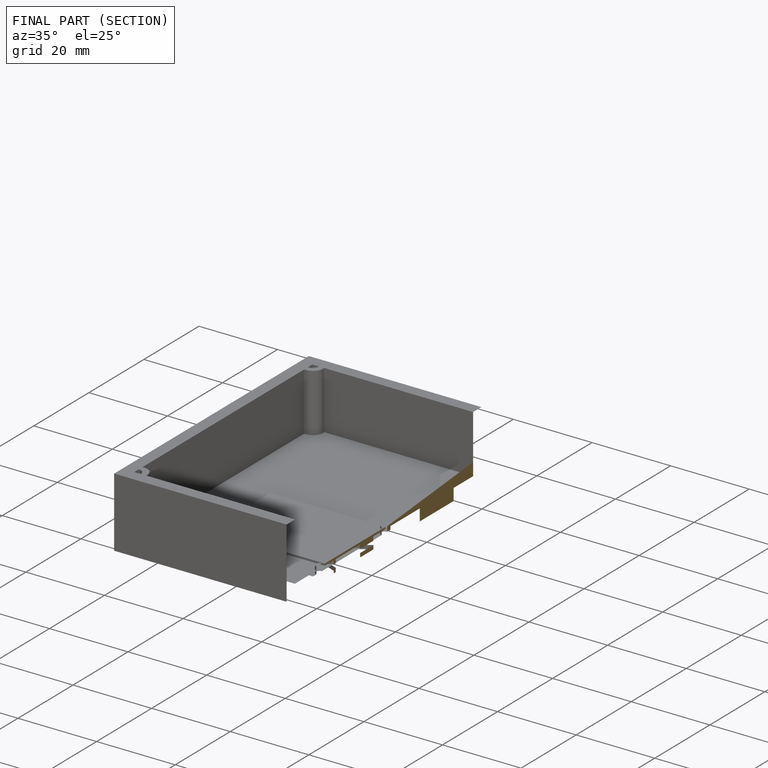
[diagram: finished part — half-section view (interior)]
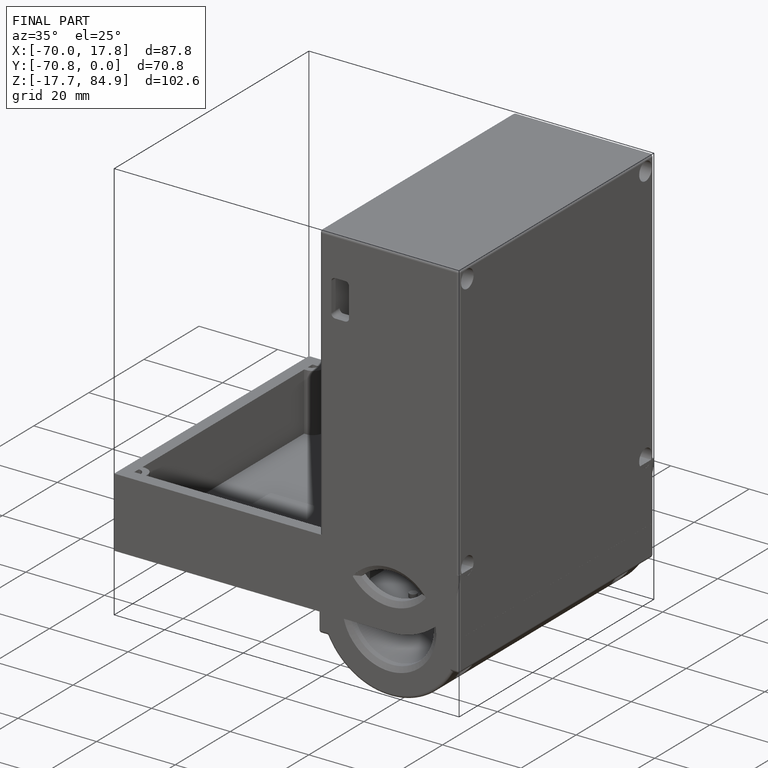
[diagram: finished part — iso view with bounding-box wireframe]
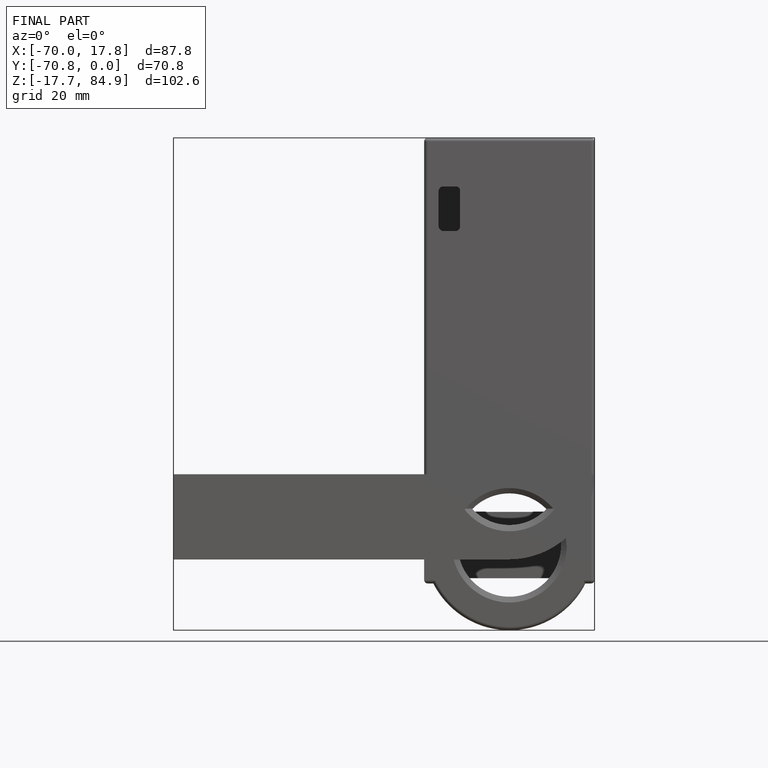
[diagram: finished part — front view with bounding-box wireframe]
